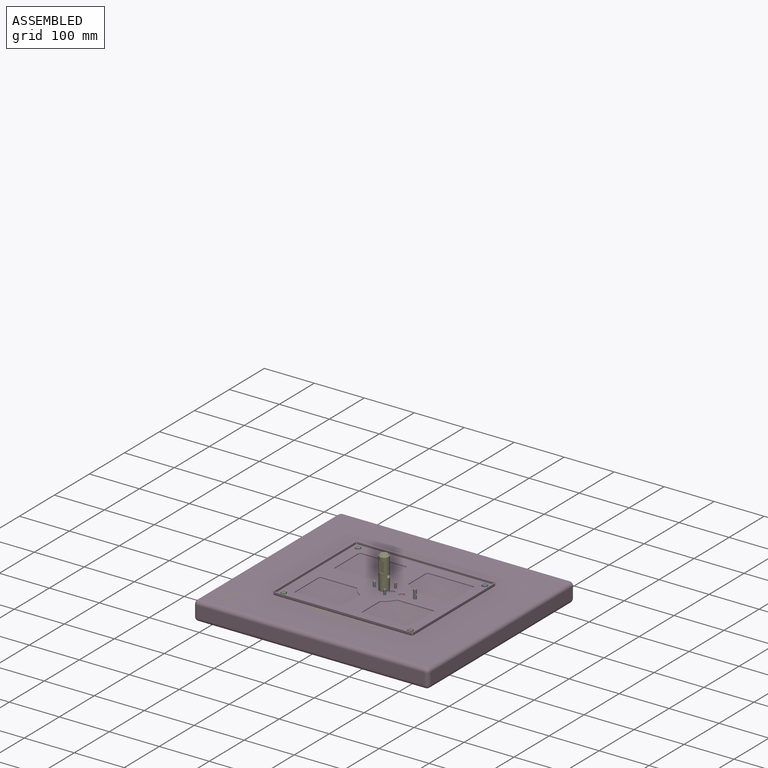
[diagram: assembled view]
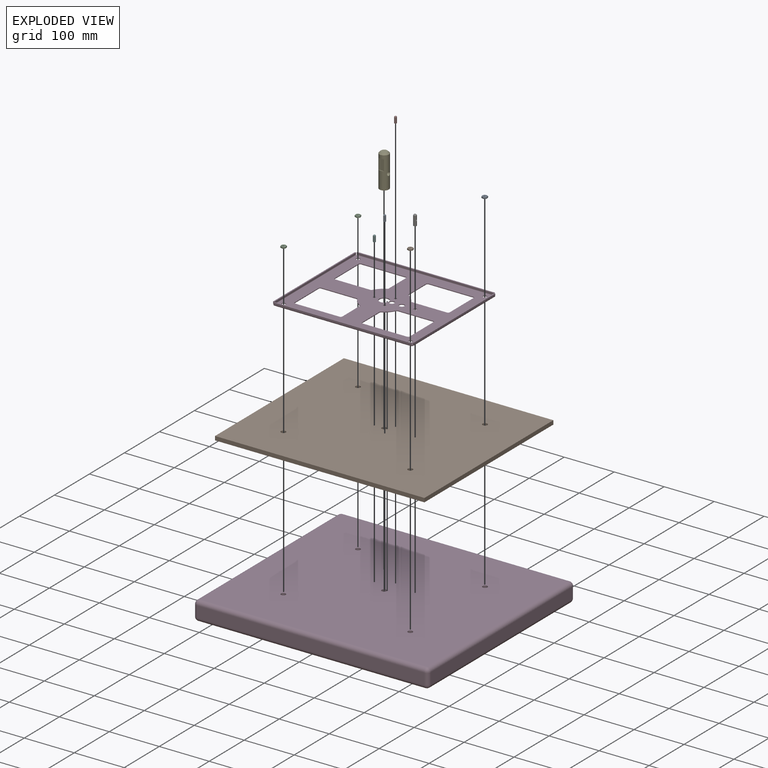
[diagram: exploded view]
GUIDED TOUR — MATED ASSEMBLY (Onshape document 5875152629a5ae1773e18e15, AutoMate assembly 5875152629a5ae1773e18e15_7c8e1c9a2186977687e85cd0_d532ed16156854fd230cbd94_default)

This assembly has 12 components, labeled P0..P11 below (a component is one placed occurrence of a part; the same part can appear more than once), held together by 11 mates. A mate is a constraint between two components; its type names the relative motion it leaves free:
  FASTENED — locks the two components together rigidly (no relative motion).
Axis/direction vectors are unit vectors and 'through' points are millimeter coordinates, both in the assembly's world frame.

MATES
  1. FASTENED "Fastened 7": P2 <-> P3, direction (0.000, 0.000, -1.000) through (-126.86, 106.23, 1.59) mm
  2. FASTENED "Fastened 1": P3 <-> P4, direction (0.000, 0.000, -1.000) through (0.00, 0.00, 0.00) mm
  3. FASTENED "Fastened 11": P11 <-> P4, direction (0.000, 0.000, 1.000) through (0.00, 0.00, 0.00) mm
  4. FASTENED "Fastened 5": P3 <-> P6, direction (0.000, 0.000, -1.000) through (61.91, 0.00, 0.00) mm
  5. FASTENED "Fastened 4": P3 <-> P0, direction (0.000, 0.000, -1.000) through (11.99, -15.56, 0.00) mm
  6. FASTENED "Fastened 2": P3 <-> P5, direction (0.000, 0.000, -1.000) through (-19.56, 0.00, 0.00) mm
  7. FASTENED "Fastened 8": P10 <-> P3, direction (0.000, 0.000, -1.000) through (-126.86, -106.23, 1.59) mm
  8. FASTENED "Fastened 10": P1 <-> P3, direction (0.000, 0.000, -1.000) through (126.86, -106.23, 1.59) mm
  9. FASTENED "Fastened 3": P3 <-> P7, direction (0.000, 0.000, -1.000) through (11.89, 15.59, 0.00) mm
  10. FASTENED "Fastened 6": P4 <-> P9, direction (0.000, 0.000, -1.000) through (0.00, 0.00, 0.00) mm
  11. FASTENED "Fastened 9": P8 <-> P3, direction (0.000, 0.000, -1.000) through (126.86, 106.23, 1.59) mm

ASSEMBLY ORDER
  1. P11 — the base component [order verified]
  2. P9 [order verified]
  3. P3 [order verified]
  4. P7 [order verified]
  5. P5 [order verified]
  6. P0 [order verified]
  7. P10 [order verified]
  8. P8 [order verified]
  9. P2 [order verified]
  10. P1 [order verified]
  11. P6 [order verified]
  12. P4 [order verified]
(P9 verified with a relaxed clearance tolerance: the source model stores slight part interference there.)
Order-tag legend:
  [order verified] — this step's position reverses a verified removal order: the component was checked to insert without passing through the ones already placed.

Of the 12 components, 3 carry the full construction recipe — the FeatureScript program that regenerates the part's solid from scratch; the rest are supplied as boundary geometry only.
Each toured component is shown spotlighted twice — in the assembled view, then in the exploded view, where a leader line traces a displaced component back to its assembled socket (saturated green if recipe-attached, orange if geometry-only; every other component desaturated gray) — followed by its recipe or geometry summary and the mates that hold it.
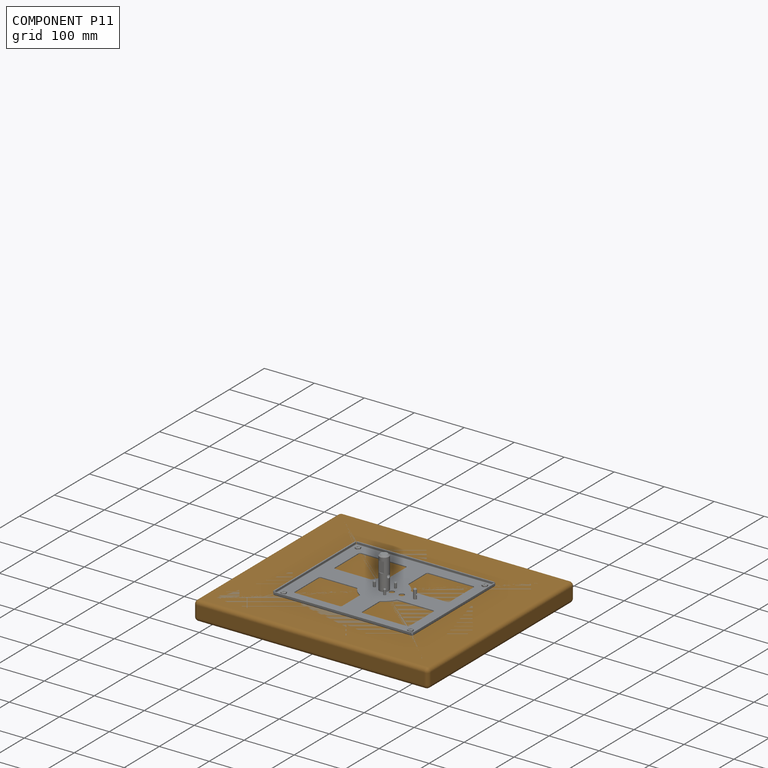
[diagram: component P11 — assembled]
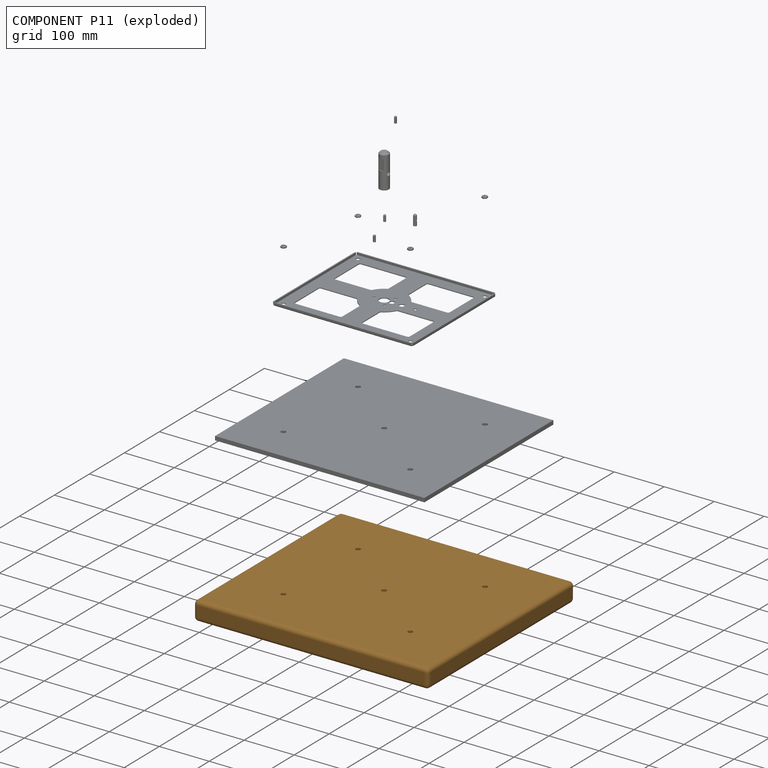
[diagram: component P11 — exploded]
COMPONENT P11 — geometry summary (no construction recipe available for this part):
  bounding box: 469.9 x 419.1 x 38.1 mm
  B-rep topology: 1 solid, 31 faces, 134 edges
  volume: 7444036 mm^3 (99% of its bounding box)
  symmetry: 2-fold rotationally symmetric about the x axis; 2-fold rotationally symmetric about the y axis; 2-fold rotationally symmetric about the z axis; mirror-symmetric across its x mid-plane, y mid-plane, z mid-plane
Held by: FASTENED mate "Fastened 11" to P4.
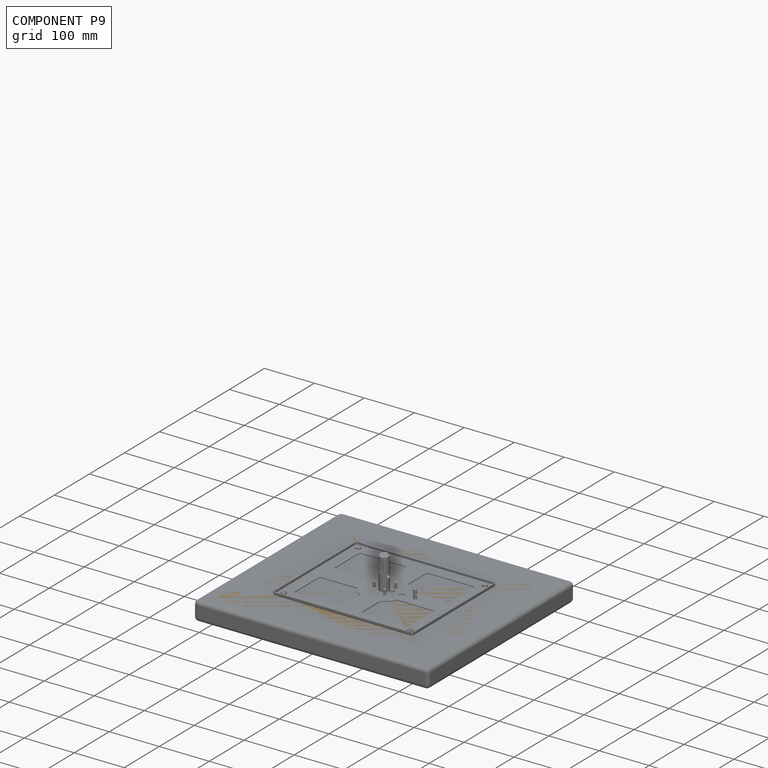
[diagram: component P9 — assembled]
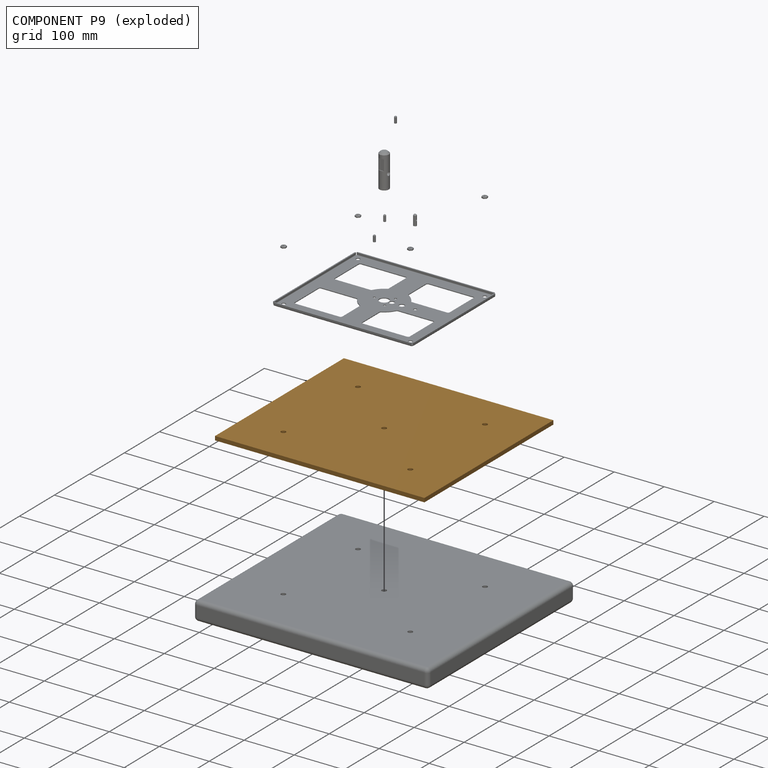
[diagram: component P9 — exploded]
COMPONENT P9 — geometry summary (no construction recipe available for this part):
  bounding box: 419.1 x 368.3 x 7.9 mm
  B-rep topology: 1 solid, 11 faces, 54 edges
  volume: 1222361 mm^3 (100% of its bounding box)
  symmetry: 2-fold rotationally symmetric about the x axis; 2-fold rotationally symmetric about the y axis; 2-fold rotationally symmetric about the z axis; mirror-symmetric across its x mid-plane, y mid-plane, z mid-plane
Held by: FASTENED mate "Fastened 6" to P4.
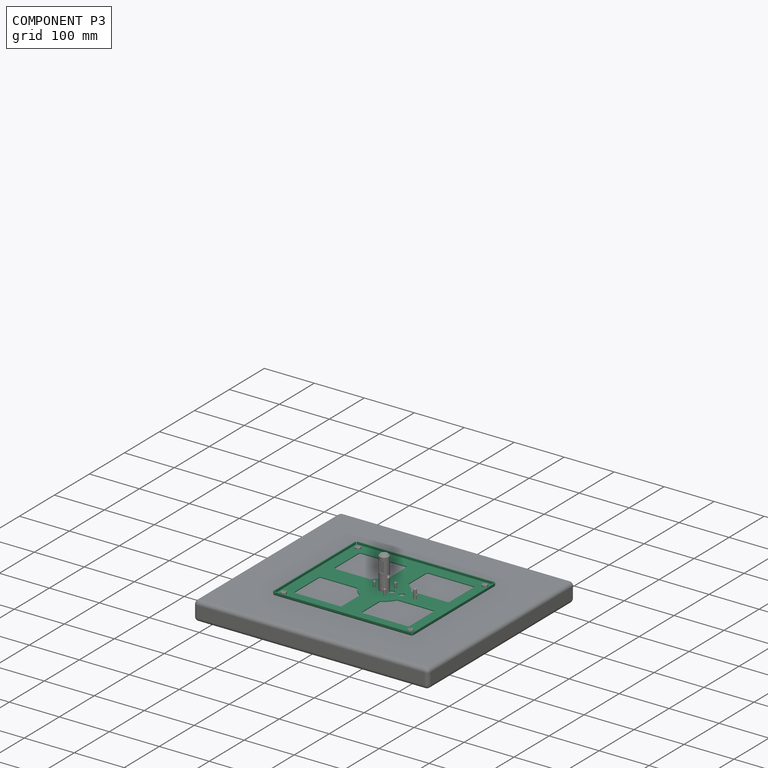
[diagram: component P3 — assembled]
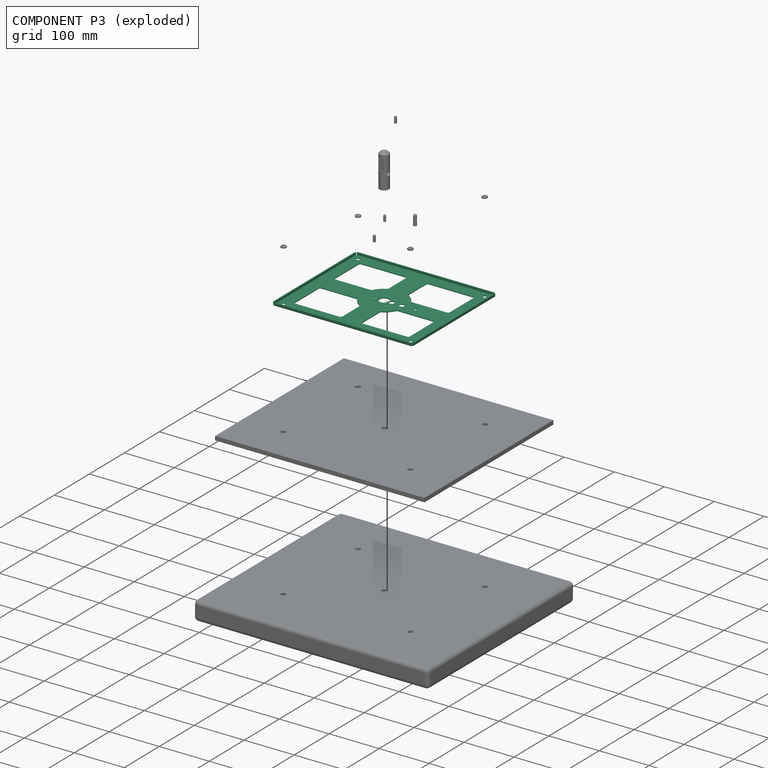
[diagram: component P3 — exploded]
COMPONENT P3 — recipe-attached (CADFS 00325569, mesh-verified: the recipe's output STEP matches this component's geometry to below the mesh-comparison resolution (tessellation chordal tolerance ~0.554 mm)).
Held by: FASTENED mate "Fastened 7" to P2; FASTENED mate "Fastened 1" to P4; FASTENED mate "Fastened 5" to P6; FASTENED mate "Fastened 4" to P0; FASTENED mate "Fastened 2" to P5; FASTENED mate "Fastened 8" to P10; FASTENED mate "Fastened 10" to P1; FASTENED mate "Fastened 3" to P7; FASTENED mate "Fastened 9" to P8.
Construction recipe (FeatureScript — the CAD program that rebuilds this solid; sketch coordinates are in the units given by the * unit suffixes, e.g. mm):

FeatureScript 1511;
import(path : "onshape/std/geometry.fs", version : "1511.0");
import(path : "onshape/std/common.fs", version : "1511.0");
const mm = millimeter;
const VERTEX = EntityType.VERTEX;
const EDGE = EntityType.EDGE;
const FACE = EntityType.FACE;
const BODY = EntityType.BODY;
function v(x, y){return vector(x, y);}
function OD(order){return orderDisambiguation(order);}
function OSD(set){return originalSetDisambiguation(set);}
function TD(topology){return topologyDisambiguation(topology);}
function TDD(query){return trueDependencyDisambiguation(query);}
function sQuery(a, b, c) {return sketchEntityQuery(a, b, c);}

annotation { "Feature Type Name" : "Feature", "Feature Type Description" : "" }
export const myFeature = defineFeature(function(context is Context, id is Id, definition is map)
    precondition{}
    {
        {
            var Q0;
            Q0=qCreatedBy(makeId("Top.planeOp"),FACE);
            var sketch = newSketch(context, id + "F0", { "sketchPlane" : qUnion([Q0])});
            skArc(sketch, "E0", {"start": v(-21.48, 38.92) * mm, "mid": v(-31.43, 31.43) * mm, "end": v(-38.92, 21.48) * mm});
            skLineSegment(sketch, "E1", {"start": v(-140.49, 116.69) * mm, "end": v(-140.49, -116.69) * mm});
            skLineSegment(sketch, "E2.0", {"start": v(-115.09, 91.29) * mm, "end": v(-115.09, 23.01) * mm});
            skLineSegment(sketch, "E3.0", {"start": v(-19.84, 91.29) * mm, "end": v(-19.84, 41.7) * mm});
            skLineSegment(sketch, "E4.0", {"start": v(19.84, 91.29) * mm, "end": v(19.84, 41.7) * mm});
            skLineSegment(sketch, "E5.0", {"start": v(115.09, 91.29) * mm, "end": v(115.09, 23.01) * mm});
            skLineSegment(sketch, "E6.0", {"start": v(140.49, 116.69) * mm, "end": v(140.49, -116.69) * mm});
            skLineSegment(sketch, "E7", {"start": v(-137.31, -119.86) * mm, "end": v(137.31, -119.86) * mm});
            skLineSegment(sketch, "E8.0", {"start": v(-111.91, -94.46) * mm, "end": v(-23.01, -94.46) * mm});
            skLineSegment(sketch, "E9.0", {"start": v(-111.91, -19.84) * mm, "end": v(-41.7, -19.84) * mm});
            skLineSegment(sketch, "E10.0", {"start": v(-111.91, 19.84) * mm, "end": v(-41.7, 19.84) * mm});
            skLineSegment(sketch, "E11.0", {"start": v(-111.91, 94.46) * mm, "end": v(-23.01, 94.46) * mm});
            skLineSegment(sketch, "E12.0", {"start": v(-137.31, 119.86) * mm, "end": v(137.31, 119.86) * mm});
            skLineSegment(sketch, "E13.trimOffspring", {"start": v(23.01, -94.46) * mm, "end": v(111.91, -94.46) * mm});
            skLineSegment(sketch, "E14.trimOffspring", {"start": v(-115.09, -23.01) * mm, "end": v(-115.09, -91.29) * mm});
            skLineSegment(sketch, "E15.trimOffspring", {"start": v(23.01, 94.46) * mm, "end": v(111.91, 94.46) * mm});
            skArc(sketch, "E16.trimOffspring", {"start": v(-38.92, -21.48) * mm, "mid": v(-31.43, -31.43) * mm, "end": v(-21.48, -38.92) * mm});
            skLineSegment(sketch, "E17.trimOffspring", {"start": v(41.7, 19.84) * mm, "end": v(111.91, 19.84) * mm});
            skArc(sketch, "E18.trimOffspring", {"start": v(38.92, 21.48) * mm, "mid": v(31.43, 31.43) * mm, "end": v(21.48, 38.92) * mm});
            skLineSegment(sketch, "E19.trimOffspring", {"start": v(41.7, -19.84) * mm, "end": v(111.91, -19.84) * mm});
            skLineSegment(sketch, "E20.trimOffspring", {"start": v(19.84, -41.7) * mm, "end": v(19.84, -91.29) * mm});
            skArc(sketch, "E21.trimOffspring", {"start": v(21.48, -38.92) * mm, "mid": v(31.43, -31.43) * mm, "end": v(38.92, -21.48) * mm});
            skLineSegment(sketch, "E22.trimOffspring", {"start": v(-19.84, -41.7) * mm, "end": v(-19.84, -91.29) * mm});
            skPoint(sketch, "E23.visualSharp", {"position": v(-115.09, 94.46) * mm});
            skArc(sketch, "E23.filletArc", {"start": v(-111.91, 94.46) * mm, "mid": v(-114.16, 93.53) * mm, "end": v(-115.09, 91.29) * mm});
            skPoint(sketch, "E24.visualSharp", {"position": v(-115.09, 19.84) * mm});
            skArc(sketch, "E24.filletArc", {"start": v(-115.09, 23.01) * mm, "mid": v(-114.16, 20.77) * mm, "end": v(-111.91, 19.84) * mm});
            skPoint(sketch, "E25.visualSharp", {"position": v(-39.78, 19.84) * mm});
            skArc(sketch, "E25.filletArc", {"start": v(-41.7, 19.84) * mm, "mid": v(-40.08, 20.28) * mm, "end": v(-38.92, 21.48) * mm});
            skPoint(sketch, "E26.visualSharp", {"position": v(-19.84, 39.78) * mm});
            skArc(sketch, "E26.filletArc", {"start": v(-21.48, 38.92) * mm, "mid": v(-20.28, 40.08) * mm, "end": v(-19.84, 41.7) * mm});
            skPoint(sketch, "E27.visualSharp", {"position": v(-19.84, 94.46) * mm});
            skArc(sketch, "E27.filletArc", {"start": v(-19.84, 91.29) * mm, "mid": v(-20.77, 93.53) * mm, "end": v(-23.01, 94.46) * mm});
            skPoint(sketch, "E28.visualSharp", {"position": v(19.84, 94.46) * mm});
            skArc(sketch, "E28.filletArc", {"start": v(23.01, 94.46) * mm, "mid": v(20.77, 93.53) * mm, "end": v(19.84, 91.29) * mm});
            skPoint(sketch, "E29.visualSharp", {"position": v(19.84, 39.78) * mm});
            skArc(sketch, "E29.filletArc", {"start": v(19.84, 41.7) * mm, "mid": v(20.28, 40.08) * mm, "end": v(21.48, 38.92) * mm});
            skPoint(sketch, "E30.visualSharp", {"position": v(39.78, 19.84) * mm});
            skArc(sketch, "E30.filletArc", {"start": v(38.92, 21.48) * mm, "mid": v(40.08, 20.28) * mm, "end": v(41.7, 19.84) * mm});
            skArc(sketch, "E31.filletArc", {"start": v(111.91, 19.84) * mm, "mid": v(114.16, 20.77) * mm, "end": v(115.09, 23.01) * mm});
            skPoint(sketch, "E32.visualSharp", {"position": v(115.09, 94.46) * mm});
            skArc(sketch, "E32.filletArc", {"start": v(115.09, 91.29) * mm, "mid": v(114.16, 93.53) * mm, "end": v(111.91, 94.46) * mm});
            skPoint(sketch, "E33.visualSharp", {"position": v(-39.78, -19.84) * mm});
            skArc(sketch, "E33.filletArc", {"start": v(-38.92, -21.48) * mm, "mid": v(-40.08, -20.28) * mm, "end": v(-41.7, -19.84) * mm});
            skPoint(sketch, "E34.visualSharp", {"position": v(-19.84, -39.78) * mm});
            skArc(sketch, "E34.filletArc", {"start": v(-19.84, -41.7) * mm, "mid": v(-20.28, -40.08) * mm, "end": v(-21.48, -38.92) * mm});
            skPoint(sketch, "E35.visualSharp", {"position": v(-19.84, -94.46) * mm});
            skArc(sketch, "E35.filletArc", {"start": v(-23.01, -94.46) * mm, "mid": v(-20.77, -93.53) * mm, "end": v(-19.84, -91.29) * mm});
            skPoint(sketch, "E36.visualSharp", {"position": v(-115.09, -94.46) * mm});
            skArc(sketch, "E36.filletArc", {"start": v(-115.09, -91.29) * mm, "mid": v(-114.16, -93.53) * mm, "end": v(-111.91, -94.46) * mm});
            skPoint(sketch, "E37.visualSharp", {"position": v(-115.09, -19.84) * mm});
            skArc(sketch, "E37.filletArc", {"start": v(-111.91, -19.84) * mm, "mid": v(-114.16, -20.77) * mm, "end": v(-115.09, -23.01) * mm});
            skPoint(sketch, "E38.visualSharp", {"position": v(19.84, -39.78) * mm});
            skArc(sketch, "E38.filletArc", {"start": v(21.48, -38.92) * mm, "mid": v(20.28, -40.08) * mm, "end": v(19.84, -41.7) * mm});
            skPoint(sketch, "E39.visualSharp", {"position": v(39.78, -19.84) * mm});
            skArc(sketch, "E39.filletArc", {"start": v(41.7, -19.84) * mm, "mid": v(40.08, -20.28) * mm, "end": v(38.92, -21.48) * mm});
            skPoint(sketch, "E40.visualSharp", {"position": v(19.84, -94.46) * mm});
            skArc(sketch, "E40.filletArc", {"start": v(19.84, -91.29) * mm, "mid": v(20.77, -93.53) * mm, "end": v(23.01, -94.46) * mm});
            skLineSegment(sketch, "E41", {"start": v(115.09, -91.29) * mm, "end": v(115.09, -23.01) * mm});
            skPoint(sketch, "E42.visualSharp", {"position": v(115.09, -94.46) * mm});
            skArc(sketch, "E42.filletArc", {"start": v(111.91, -94.46) * mm, "mid": v(114.16, -93.53) * mm, "end": v(115.09, -91.29) * mm});
            skPoint(sketch, "E43.visualSharp", {"position": v(115.09, -19.84) * mm});
            skArc(sketch, "E43.filletArc", {"start": v(115.09, -23.01) * mm, "mid": v(114.16, -20.77) * mm, "end": v(111.91, -19.84) * mm});
            skPoint(sketch, "E44.visualSharp", {"position": v(140.49, 119.86) * mm});
            skArc(sketch, "E44.filletArc", {"start": v(140.49, 116.69) * mm, "mid": v(139.56, 118.93) * mm, "end": v(137.31, 119.86) * mm});
            skPoint(sketch, "E45.visualSharp", {"position": v(140.49, -119.86) * mm});
            skArc(sketch, "E45.filletArc", {"start": v(137.31, -119.86) * mm, "mid": v(139.56, -118.93) * mm, "end": v(140.49, -116.69) * mm});
            skPoint(sketch, "E46.visualSharp", {"position": v(-140.49, -119.86) * mm});
            skArc(sketch, "E46.filletArc", {"start": v(-140.49, -116.69) * mm, "mid": v(-139.56, -118.93) * mm, "end": v(-137.31, -119.86) * mm});
            skPoint(sketch, "E47.visualSharp", {"position": v(-140.49, 119.86) * mm});
            skArc(sketch, "E47.filletArc", {"start": v(-137.31, 119.86) * mm, "mid": v(-139.56, 118.93) * mm, "end": v(-140.49, 116.69) * mm});
            skLineSegment(sketch, "E48", {"start": v(-139.56, -118.93) * mm, "end": v(-114.16, -93.53) * mm});
            skPoint(sketch, "E49", {"position": v(-126.86, -106.23) * mm});
            skCircle(sketch, "E50", {"center": v(-126.86, -106.23) * mm, "radius": 3.81 * mm});
            skLineSegment(sketch, "E51", {"start": v(-139.56, 118.93) * mm, "end": v(-114.16, 93.53) * mm});
            skPoint(sketch, "E52", {"position": v(-126.86, 106.23) * mm});
            skCircle(sketch, "E53", {"center": v(-126.86, 106.23) * mm, "radius": 3.81 * mm});
            skLineSegment(sketch, "E54", {"start": v(114.16, 93.53) * mm, "end": v(139.56, 118.93) * mm});
            skPoint(sketch, "E55", {"position": v(126.86, 106.23) * mm});
            skCircle(sketch, "E56", {"center": v(126.86, 106.23) * mm, "radius": 3.81 * mm});
            skLineSegment(sketch, "E57", {"start": v(114.16, -93.53) * mm, "end": v(139.56, -118.93) * mm});
            skPoint(sketch, "E58", {"position": v(126.86, -106.23) * mm});
            skCircle(sketch, "E59", {"center": v(126.86, -106.23) * mm, "radius": 3.81 * mm});
            skCircle(sketch, "E60", {"center": v(15.47, 0) * mm, "radius": 5.16 * mm});
            skLineSegment(sketch, "E61", {"start": v(0, 0) * mm, "end": v(-174.23, 0) * mm, "construction": true});
            skLineSegment(sketch, "E62", {"start": v(-174.23, 0) * mm, "end": v(-174.23, 0) * mm});
            skLineSegment(sketch, "E63", {"start": v(0, 0) * mm, "end": v(180.46, 0) * mm, "construction": true});
            skLineSegment(sketch, "E64", {"start": v(0, -149.74) * mm, "end": v(0, 151.2) * mm, "construction": true});
            skCircle(sketch, "E65", {"center": v(0, 0) * mm, "radius": 9.53 * mm});
            skCircle(sketch, "E66", {"center": v(35.31, 0) * mm, "radius": 5.16 * mm});
            skCircle(sketch, "E67", {"center": v(-19.56, 0) * mm, "radius": 2.38 * mm});
            skPoint(sketch, "E68", {"position": v(-31.43, 31.43) * mm});
            skPoint(sketch, "E69", {"position": v(-31.43, -31.43) * mm});
            skCircle(sketch, "E70", {"center": v(0, 0) * mm, "radius": 17.22 * mm});
            skCircle(sketch, "E71", {"center": v(11.9, 15.59) * mm, "radius": 2.39 * mm});
            skCircle(sketch, "E72", {"center": v(12, -15.56) * mm, "radius": 2.39 * mm});
            skLineSegment(sketch, "E73", {"start": v(9.53, 0) * mm, "end": v(9.53, 25.1) * mm, "construction": true});
            skLineSegment(sketch, "E74", {"start": v(9.53, 0) * mm, "end": v(9.53, -24.17) * mm, "construction": true});
            skCircle(sketch, "E75", {"center": v(61.91, 0) * mm, "radius": 3.18 * mm});
            skSolve(sketch);
        }
        {
            var Q0;
            Q0=makeQuery(id+"F0.imprint","IMPRINT",FACE,{"disambiguationData":[TD([[makeQuery(id+"F0.imprint","IMPRINT",EDGE,{"derivedFrom":sQuery(id+"F0.wireOp",EDGE,"E0")}),1.0]])]});
            var Q1;
            {var subQ14=sQuery(id+"F0.wireOp",EDGE,"E5.0");Q1=makeQuery(id+"F0.imprint","IMPRINT",FACE,{"disambiguationData":[TD([[makeQuery(id+"F0.imprint","IMPRINT",EDGE,{"derivedFrom":subQ14}),1.0]])]});}
            var Q2;
            Q2=makeQuery(id+"F0.imprint","IMPRINT",FACE,{"disambiguationData":[TD([[makeQuery(id+"F0.imprint","IMPRINT",EDGE,{"derivedFrom":sQuery(id+"F0.wireOp",EDGE,"E65")}),-1.0]])]});
            extrude(context, id + "F1", {"entities" : qUnion([Q0, Q1, Q2]), "depth" : 1.59 * mm});
        }
        {
            var Q0;
            Q0=qCreatedBy(makeId("Top.planeOp"),FACE);
            var sketch = newSketch(context, id + "F2", { "sketchPlane" : qUnion([Q0])});
            skLineSegment(sketch, "E76", {"start": v(-138.1, 116.68) * mm, "end": v(-138.1, -116.68) * mm});
            skLineSegment(sketch, "E77.0", {"start": v(-140.49, 116.68) * mm, "end": v(-140.49, -116.68) * mm});
            skLineSegment(sketch, "E78", {"start": v(138.1, 116.68) * mm, "end": v(138.1, -116.68) * mm});
            skLineSegment(sketch, "E79.0", {"start": v(140.49, 116.68) * mm, "end": v(140.49, -116.68) * mm});
            skLineSegment(sketch, "E80", {"start": v(-137.33, -117.48) * mm, "end": v(137.3, -117.48) * mm});
            skLineSegment(sketch, "E81.0", {"start": v(-137.33, 117.48) * mm, "end": v(137.3, 117.48) * mm});
            skLineSegment(sketch, "E82.0", {"start": v(-137.33, -119.86) * mm, "end": v(137.3, -119.86) * mm});
            skLineSegment(sketch, "E83", {"start": v(-137.33, 119.86) * mm, "end": v(-137.33, 117.48) * mm});
            skLineSegment(sketch, "E84", {"start": v(137.3, 119.86) * mm, "end": v(137.3, 117.48) * mm});
            skLineSegment(sketch, "E85", {"start": v(-140.49, 116.68) * mm, "end": v(-138.1, 116.68) * mm});
            skLineSegment(sketch, "E86", {"start": v(-140.49, -116.68) * mm, "end": v(-138.1, -116.68) * mm});
            skLineSegment(sketch, "E87.trimOffspring", {"start": v(-137.33, 119.86) * mm, "end": v(137.3, 119.86) * mm});
            skLineSegment(sketch, "E88.trimOffspring", {"start": v(137.3, -117.48) * mm, "end": v(137.3, -119.86) * mm});
            skLineSegment(sketch, "E89.trimOffspring", {"start": v(138.1, 116.68) * mm, "end": v(140.49, 116.68) * mm});
            skLineSegment(sketch, "E90.trimOffspring", {"start": v(-137.33, -117.48) * mm, "end": v(-137.33, -119.86) * mm});
            skLineSegment(sketch, "E91.trimOffspring", {"start": v(138.1, -116.68) * mm, "end": v(140.49, -116.68) * mm});
            skSolve(sketch);
        }
        {
            var Q0;
            Q0=makeQuery(id+"F2.imprint","IMPRINT",FACE,{"disambiguationData":[TD([[makeQuery(id+"F2.imprint","IMPRINT",EDGE,{"derivedFrom":sQuery(id+"F2.wireOp",EDGE,"E81.0")}),1.0]])]});
            var Q1;
            Q1=makeQuery(id+"F2.imprint","IMPRINT",FACE,{"disambiguationData":[TD([[makeQuery(id+"F2.imprint","IMPRINT",EDGE,{"derivedFrom":sQuery(id+"F2.wireOp",EDGE,"E78")}),1.0]])]});
            var Q2;
            Q2=makeQuery(id+"F2.imprint","IMPRINT",FACE,{"disambiguationData":[TD([[makeQuery(id+"F2.imprint","IMPRINT",EDGE,{"derivedFrom":sQuery(id+"F2.wireOp",EDGE,"E80")}),-1.0]])]});
            var Q3;
            Q3=makeQuery(id+"F2.imprint","IMPRINT",FACE,{"disambiguationData":[TD([[makeQuery(id+"F2.imprint","IMPRINT",EDGE,{"derivedFrom":sQuery(id+"F2.wireOp",EDGE,"E76")}),-1.0]])]});
            extrude(context, id + "F3", {"entities" : qUnion([Q0, Q1, Q2, Q3]), "operationType" : NewBodyOperationType.ADD, "depth" : 6.35 * mm});
        }
        {
            var Q0;
            Q0=makeQuery(id+"F3.boolean.opBoolean","INTERSECT",EDGE,{"derivedFrom":[makeQuery(id+"F1.opExtrude","CAP_FACE",FACE,{"disambiguationData":[OSD([sQuery(id+"F0.wireOp",EDGE,"E0"),sQuery(id+"F0.wireOp",EDGE,"E1"),sQuery(id+"F0.wireOp",EDGE,"E2.0"),sQuery(id+"F0.wireOp",EDGE,"E3.0"),sQuery(id+"F0.wireOp",EDGE,"E4.0"),sQuery(id+"F0.wireOp",EDGE,"E5.0"),sQuery(id+"F0.wireOp",EDGE,"E6.0"),sQuery(id+"F0.wireOp",EDGE,"E7"),sQuery(id+"F0.wireOp",EDGE,"E8.0"),sQuery(id+"F0.wireOp",EDGE,"E9.0"),sQuery(id+"F0.wireOp",EDGE,"E10.0"),sQuery(id+"F0.wireOp",EDGE,"E11.0"),sQuery(id+"F0.wireOp",EDGE,"E12.0"),sQuery(id+"F0.wireOp",EDGE,"E13.trimOffspring"),sQuery(id+"F0.wireOp",EDGE,"E14.trimOffspring"),sQuery(id+"F0.wireOp",EDGE,"E15.trimOffspring"),sQuery(id+"F0.wireOp",EDGE,"E16.trimOffspring"),sQuery(id+"F0.wireOp",EDGE,"E17.trimOffspring"),sQuery(id+"F0.wireOp",EDGE,"E18.trimOffspring"),sQuery(id+"F0.wireOp",EDGE,"E19.trimOffspring"),sQuery(id+"F0.wireOp",EDGE,"E20.trimOffspring"),sQuery(id+"F0.wireOp",EDGE,"E21.trimOffspring"),sQuery(id+"F0.wireOp",EDGE,"E22.trimOffspring"),sQuery(id+"F0.wireOp",EDGE,"E23.filletArc"),sQuery(id+"F0.wireOp",EDGE,"E24.filletArc"),sQuery(id+"F0.wireOp",EDGE,"E25.filletArc"),sQuery(id+"F0.wireOp",EDGE,"E26.filletArc"),sQuery(id+"F0.wireOp",EDGE,"E27.filletArc"),sQuery(id+"F0.wireOp",EDGE,"E28.filletArc"),sQuery(id+"F0.wireOp",EDGE,"E29.filletArc"),sQuery(id+"F0.wireOp",EDGE,"E30.filletArc"),sQuery(id+"F0.wireOp",EDGE,"E31.filletArc"),sQuery(id+"F0.wireOp",EDGE,"E32.filletArc"),sQuery(id+"F0.wireOp",EDGE,"E33.filletArc"),sQuery(id+"F0.wireOp",EDGE,"E34.filletArc"),sQuery(id+"F0.wireOp",EDGE,"E35.filletArc"),sQuery(id+"F0.wireOp",EDGE,"E36.filletArc"),sQuery(id+"F0.wireOp",EDGE,"E37.filletArc"),sQuery(id+"F0.wireOp",EDGE,"E38.filletArc"),sQuery(id+"F0.wireOp",EDGE,"E39.filletArc"),sQuery(id+"F0.wireOp",EDGE,"E40.filletArc"),sQuery(id+"F0.wireOp",EDGE,"E41"),sQuery(id+"F0.wireOp",EDGE,"E42.filletArc"),sQuery(id+"F0.wireOp",EDGE,"E43.filletArc"),sQuery(id+"F0.wireOp",EDGE,"E44.filletArc"),sQuery(id+"F0.wireOp",EDGE,"E45.filletArc"),sQuery(id+"F0.wireOp",EDGE,"E46.filletArc"),sQuery(id+"F0.wireOp",EDGE,"E47.filletArc"),sQuery(id+"F0.wireOp",EDGE,"E50"),sQuery(id+"F0.wireOp",EDGE,"E53"),sQuery(id+"F0.wireOp",EDGE,"E56"),sQuery(id+"F0.wireOp",EDGE,"E59"),sQuery(id+"F0.wireOp",EDGE,"E60"),sQuery(id+"F0.wireOp",EDGE,"4c565e8e-d8a4-4b50-a715-5eb734d49097")])],"isStart":false}),makeQuery(id+"F3.opExtrude","SWEPT_FACE",FACE,{"disambiguationData":[OSD([sQuery(id+"F2.wireOp",EDGE,"E81.0")])]})]});
            var Q1;
            Q1=makeQuery(id+"F3.boolean.opBoolean","INTERSECT",EDGE,{"derivedFrom":[makeQuery(id+"F1.opExtrude","CAP_FACE",FACE,{"disambiguationData":[OSD([sQuery(id+"F0.wireOp",EDGE,"E0"),sQuery(id+"F0.wireOp",EDGE,"E1"),sQuery(id+"F0.wireOp",EDGE,"E2.0"),sQuery(id+"F0.wireOp",EDGE,"E3.0"),sQuery(id+"F0.wireOp",EDGE,"E4.0"),sQuery(id+"F0.wireOp",EDGE,"E5.0"),sQuery(id+"F0.wireOp",EDGE,"E6.0"),sQuery(id+"F0.wireOp",EDGE,"E7"),sQuery(id+"F0.wireOp",EDGE,"E8.0"),sQuery(id+"F0.wireOp",EDGE,"E9.0"),sQuery(id+"F0.wireOp",EDGE,"E10.0"),sQuery(id+"F0.wireOp",EDGE,"E11.0"),sQuery(id+"F0.wireOp",EDGE,"E12.0"),sQuery(id+"F0.wireOp",EDGE,"E13.trimOffspring"),sQuery(id+"F0.wireOp",EDGE,"E14.trimOffspring"),sQuery(id+"F0.wireOp",EDGE,"E15.trimOffspring"),sQuery(id+"F0.wireOp",EDGE,"E16.trimOffspring"),sQuery(id+"F0.wireOp",EDGE,"E17.trimOffspring"),sQuery(id+"F0.wireOp",EDGE,"E18.trimOffspring"),sQuery(id+"F0.wireOp",EDGE,"E19.trimOffspring"),sQuery(id+"F0.wireOp",EDGE,"E20.trimOffspring"),sQuery(id+"F0.wireOp",EDGE,"E21.trimOffspring"),sQuery(id+"F0.wireOp",EDGE,"E22.trimOffspring"),sQuery(id+"F0.wireOp",EDGE,"E23.filletArc"),sQuery(id+"F0.wireOp",EDGE,"E24.filletArc"),sQuery(id+"F0.wireOp",EDGE,"E25.filletArc"),sQuery(id+"F0.wireOp",EDGE,"E26.filletArc"),sQuery(id+"F0.wireOp",EDGE,"E27.filletArc"),sQuery(id+"F0.wireOp",EDGE,"E28.filletArc"),sQuery(id+"F0.wireOp",EDGE,"E29.filletArc"),sQuery(id+"F0.wireOp",EDGE,"E30.filletArc"),sQuery(id+"F0.wireOp",EDGE,"E31.filletArc"),sQuery(id+"F0.wireOp",EDGE,"E32.filletArc"),sQuery(id+"F0.wireOp",EDGE,"E33.filletArc"),sQuery(id+"F0.wireOp",EDGE,"E34.filletArc"),sQuery(id+"F0.wireOp",EDGE,"E35.filletArc"),sQuery(id+"F0.wireOp",EDGE,"E36.filletArc"),sQuery(id+"F0.wireOp",EDGE,"E37.filletArc"),sQuery(id+"F0.wireOp",EDGE,"E38.filletArc"),sQuery(id+"F0.wireOp",EDGE,"E39.filletArc"),sQuery(id+"F0.wireOp",EDGE,"E40.filletArc"),sQuery(id+"F0.wireOp",EDGE,"E41"),sQuery(id+"F0.wireOp",EDGE,"E42.filletArc"),sQuery(id+"F0.wireOp",EDGE,"E43.filletArc"),sQuery(id+"F0.wireOp",EDGE,"E44.filletArc"),sQuery(id+"F0.wireOp",EDGE,"E45.filletArc"),sQuery(id+"F0.wireOp",EDGE,"E46.filletArc"),sQuery(id+"F0.wireOp",EDGE,"E47.filletArc"),sQuery(id+"F0.wireOp",EDGE,"E50"),sQuery(id+"F0.wireOp",EDGE,"E53"),sQuery(id+"F0.wireOp",EDGE,"E56"),sQuery(id+"F0.wireOp",EDGE,"E59"),sQuery(id+"F0.wireOp",EDGE,"E60"),sQuery(id+"F0.wireOp",EDGE,"4c565e8e-d8a4-4b50-a715-5eb734d49097")])],"isStart":false}),makeQuery(id+"F3.opExtrude","SWEPT_FACE",FACE,{"disambiguationData":[OSD([sQuery(id+"F2.wireOp",EDGE,"E78")])]})]});
            var Q2;
            Q2=makeQuery(id+"F3.boolean.opBoolean","INTERSECT",EDGE,{"derivedFrom":[makeQuery(id+"F1.opExtrude","CAP_FACE",FACE,{"disambiguationData":[OSD([sQuery(id+"F0.wireOp",EDGE,"E0"),sQuery(id+"F0.wireOp",EDGE,"E1"),sQuery(id+"F0.wireOp",EDGE,"E2.0"),sQuery(id+"F0.wireOp",EDGE,"E3.0"),sQuery(id+"F0.wireOp",EDGE,"E4.0"),sQuery(id+"F0.wireOp",EDGE,"E5.0"),sQuery(id+"F0.wireOp",EDGE,"E6.0"),sQuery(id+"F0.wireOp",EDGE,"E7"),sQuery(id+"F0.wireOp",EDGE,"E8.0"),sQuery(id+"F0.wireOp",EDGE,"E9.0"),sQuery(id+"F0.wireOp",EDGE,"E10.0"),sQuery(id+"F0.wireOp",EDGE,"E11.0"),sQuery(id+"F0.wireOp",EDGE,"E12.0"),sQuery(id+"F0.wireOp",EDGE,"E13.trimOffspring"),sQuery(id+"F0.wireOp",EDGE,"E14.trimOffspring"),sQuery(id+"F0.wireOp",EDGE,"E15.trimOffspring"),sQuery(id+"F0.wireOp",EDGE,"E16.trimOffspring"),sQuery(id+"F0.wireOp",EDGE,"E17.trimOffspring"),sQuery(id+"F0.wireOp",EDGE,"E18.trimOffspring"),sQuery(id+"F0.wireOp",EDGE,"E19.trimOffspring"),sQuery(id+"F0.wireOp",EDGE,"E20.trimOffspring"),sQuery(id+"F0.wireOp",EDGE,"E21.trimOffspring"),sQuery(id+"F0.wireOp",EDGE,"E22.trimOffspring"),sQuery(id+"F0.wireOp",EDGE,"E23.filletArc"),sQuery(id+"F0.wireOp",EDGE,"E24.filletArc"),sQuery(id+"F0.wireOp",EDGE,"E25.filletArc"),sQuery(id+"F0.wireOp",EDGE,"E26.filletArc"),sQuery(id+"F0.wireOp",EDGE,"E27.filletArc"),sQuery(id+"F0.wireOp",EDGE,"E28.filletArc"),sQuery(id+"F0.wireOp",EDGE,"E29.filletArc"),sQuery(id+"F0.wireOp",EDGE,"E30.filletArc"),sQuery(id+"F0.wireOp",EDGE,"E31.filletArc"),sQuery(id+"F0.wireOp",EDGE,"E32.filletArc"),sQuery(id+"F0.wireOp",EDGE,"E33.filletArc"),sQuery(id+"F0.wireOp",EDGE,"E34.filletArc"),sQuery(id+"F0.wireOp",EDGE,"E35.filletArc"),sQuery(id+"F0.wireOp",EDGE,"E36.filletArc"),sQuery(id+"F0.wireOp",EDGE,"E37.filletArc"),sQuery(id+"F0.wireOp",EDGE,"E38.filletArc"),sQuery(id+"F0.wireOp",EDGE,"E39.filletArc"),sQuery(id+"F0.wireOp",EDGE,"E40.filletArc"),sQuery(id+"F0.wireOp",EDGE,"E41"),sQuery(id+"F0.wireOp",EDGE,"E42.filletArc"),sQuery(id+"F0.wireOp",EDGE,"E43.filletArc"),sQuery(id+"F0.wireOp",EDGE,"E44.filletArc"),sQuery(id+"F0.wireOp",EDGE,"E45.filletArc"),sQuery(id+"F0.wireOp",EDGE,"E46.filletArc"),sQuery(id+"F0.wireOp",EDGE,"E47.filletArc"),sQuery(id+"F0.wireOp",EDGE,"E50"),sQuery(id+"F0.wireOp",EDGE,"E53"),sQuery(id+"F0.wireOp",EDGE,"E56"),sQuery(id+"F0.wireOp",EDGE,"E59"),sQuery(id+"F0.wireOp",EDGE,"E60"),sQuery(id+"F0.wireOp",EDGE,"4c565e8e-d8a4-4b50-a715-5eb734d49097")])],"isStart":false}),makeQuery(id+"F3.opExtrude","SWEPT_FACE",FACE,{"disambiguationData":[OSD([sQuery(id+"F2.wireOp",EDGE,"E80")])]})]});
            var Q3;
            Q3=makeQuery(id+"F3.boolean.opBoolean","INTERSECT",EDGE,{"derivedFrom":[makeQuery(id+"F1.opExtrude","CAP_FACE",FACE,{"disambiguationData":[OSD([sQuery(id+"F0.wireOp",EDGE,"E0"),sQuery(id+"F0.wireOp",EDGE,"E1"),sQuery(id+"F0.wireOp",EDGE,"E2.0"),sQuery(id+"F0.wireOp",EDGE,"E3.0"),sQuery(id+"F0.wireOp",EDGE,"E4.0"),sQuery(id+"F0.wireOp",EDGE,"E5.0"),sQuery(id+"F0.wireOp",EDGE,"E6.0"),sQuery(id+"F0.wireOp",EDGE,"E7"),sQuery(id+"F0.wireOp",EDGE,"E8.0"),sQuery(id+"F0.wireOp",EDGE,"E9.0"),sQuery(id+"F0.wireOp",EDGE,"E10.0"),sQuery(id+"F0.wireOp",EDGE,"E11.0"),sQuery(id+"F0.wireOp",EDGE,"E12.0"),sQuery(id+"F0.wireOp",EDGE,"E13.trimOffspring"),sQuery(id+"F0.wireOp",EDGE,"E14.trimOffspring"),sQuery(id+"F0.wireOp",EDGE,"E15.trimOffspring"),sQuery(id+"F0.wireOp",EDGE,"E16.trimOffspring"),sQuery(id+"F0.wireOp",EDGE,"E17.trimOffspring"),sQuery(id+"F0.wireOp",EDGE,"E18.trimOffspring"),sQuery(id+"F0.wireOp",EDGE,"E19.trimOffspring"),sQuery(id+"F0.wireOp",EDGE,"E20.trimOffspring"),sQuery(id+"F0.wireOp",EDGE,"E21.trimOffspring"),sQuery(id+"F0.wireOp",EDGE,"E22.trimOffspring"),sQuery(id+"F0.wireOp",EDGE,"E23.filletArc"),sQuery(id+"F0.wireOp",EDGE,"E24.filletArc"),sQuery(id+"F0.wireOp",EDGE,"E25.filletArc"),sQuery(id+"F0.wireOp",EDGE,"E26.filletArc"),sQuery(id+"F0.wireOp",EDGE,"E27.filletArc"),sQuery(id+"F0.wireOp",EDGE,"E28.filletArc"),sQuery(id+"F0.wireOp",EDGE,"E29.filletArc"),sQuery(id+"F0.wireOp",EDGE,"E30.filletArc"),sQuery(id+"F0.wireOp",EDGE,"E31.filletArc"),sQuery(id+"F0.wireOp",EDGE,"E32.filletArc"),sQuery(id+"F0.wireOp",EDGE,"E33.filletArc"),sQuery(id+"F0.wireOp",EDGE,"E34.filletArc"),sQuery(id+"F0.wireOp",EDGE,"E35.filletArc"),sQuery(id+"F0.wireOp",EDGE,"E36.filletArc"),sQuery(id+"F0.wireOp",EDGE,"E37.filletArc"),sQuery(id+"F0.wireOp",EDGE,"E38.filletArc"),sQuery(id+"F0.wireOp",EDGE,"E39.filletArc"),sQuery(id+"F0.wireOp",EDGE,"E40.filletArc"),sQuery(id+"F0.wireOp",EDGE,"E41"),sQuery(id+"F0.wireOp",EDGE,"E42.filletArc"),sQuery(id+"F0.wireOp",EDGE,"E43.filletArc"),sQuery(id+"F0.wireOp",EDGE,"E44.filletArc"),sQuery(id+"F0.wireOp",EDGE,"E45.filletArc"),sQuery(id+"F0.wireOp",EDGE,"E46.filletArc"),sQuery(id+"F0.wireOp",EDGE,"E47.filletArc"),sQuery(id+"F0.wireOp",EDGE,"E50"),sQuery(id+"F0.wireOp",EDGE,"E53"),sQuery(id+"F0.wireOp",EDGE,"E56"),sQuery(id+"F0.wireOp",EDGE,"E59"),sQuery(id+"F0.wireOp",EDGE,"E60"),sQuery(id+"F0.wireOp",EDGE,"4c565e8e-d8a4-4b50-a715-5eb734d49097")])],"isStart":false}),makeQuery(id+"F3.opExtrude","SWEPT_FACE",FACE,{"disambiguationData":[OSD([sQuery(id+"F2.wireOp",EDGE,"E76")])]})]});
            fillet(context, id + "F4", {"entities" : qUnion([Q0, Q1, Q2, Q3]), "radius" : 0.76 * mm, "tangentPropagation" : true, "allowEdgeOverflow" : false});
        }
        {
            var Q0;
            Q0=qCreatedBy(makeId("Top.planeOp"),FACE);
            var sketch = newSketch(context, id + "F5", { "sketchPlane" : qUnion([Q0])});
            skLineSegment(sketch, "E92.bottom", {"start": v(-141.66, 120.91) * mm, "end": v(-137.32, 120.91) * mm});
            skLineSegment(sketch, "E92.top", {"start": v(-141.66, 116.68) * mm, "end": v(-137.32, 116.68) * mm});
            skLineSegment(sketch, "E92.left", {"start": v(-141.66, 120.91) * mm, "end": v(-141.66, 116.68) * mm});
            skLineSegment(sketch, "E92.right", {"start": v(-137.32, 120.91) * mm, "end": v(-137.32, 116.68) * mm});
            skLineSegment(sketch, "E93.bottom", {"start": v(145, 124.29) * mm, "end": v(137.31, 124.29) * mm});
            skLineSegment(sketch, "E93.top", {"start": v(145, 116.68) * mm, "end": v(137.31, 116.68) * mm});
            skLineSegment(sketch, "E93.left", {"start": v(145, 124.29) * mm, "end": v(145, 116.68) * mm});
            skLineSegment(sketch, "E93.right", {"start": v(137.31, 124.29) * mm, "end": v(137.31, 116.68) * mm});
            skLineSegment(sketch, "E94.bottom", {"start": v(145, -123.46) * mm, "end": v(137.31, -123.46) * mm});
            skLineSegment(sketch, "E94.top", {"start": v(145, -116.68) * mm, "end": v(137.31, -116.68) * mm});
            skLineSegment(sketch, "E94.left", {"start": v(145, -123.46) * mm, "end": v(145, -116.68) * mm});
            skLineSegment(sketch, "E94.right", {"start": v(137.31, -123.46) * mm, "end": v(137.31, -116.68) * mm});
            skLineSegment(sketch, "E95.bottom", {"start": v(-145.82, -123.08) * mm, "end": v(-137.33, -123.08) * mm});
            skLineSegment(sketch, "E95.top", {"start": v(-145.82, -116.68) * mm, "end": v(-137.33, -116.68) * mm});
            skLineSegment(sketch, "E95.left", {"start": v(-145.82, -123.08) * mm, "end": v(-145.82, -116.68) * mm});
            skLineSegment(sketch, "E95.right", {"start": v(-137.33, -123.08) * mm, "end": v(-137.33, -116.68) * mm});
            skSolve(sketch);
        }
        {
            var Q0;
            Q0=makeQuery(id+"F5.imprint","IMPRINT",FACE,{"disambiguationData":[TD([[makeQuery(id+"F5.imprint","IMPRINT",EDGE,{"derivedFrom":sQuery(id+"F5.wireOp",EDGE,"E93.bottom")}),1.0]])]});
            var Q1;
            Q1=makeQuery(id+"F5.imprint","IMPRINT",FACE,{"disambiguationData":[TD([[makeQuery(id+"F5.imprint","IMPRINT",EDGE,{"derivedFrom":sQuery(id+"F5.wireOp",EDGE,"E92.bottom")}),-1.0]])]});
            var Q2;
            Q2=makeQuery(id+"F5.imprint","IMPRINT",FACE,{"disambiguationData":[TD([[makeQuery(id+"F5.imprint","IMPRINT",EDGE,{"derivedFrom":sQuery(id+"F5.wireOp",EDGE,"E95.bottom")}),1.0]])]});
            var Q3;
            Q3=makeQuery(id+"F5.imprint","IMPRINT",FACE,{"disambiguationData":[TD([[makeQuery(id+"F5.imprint","IMPRINT",EDGE,{"derivedFrom":sQuery(id+"F5.wireOp",EDGE,"E94.bottom")}),-1.0]])]});
            extrude(context, id + "F6", {"entities" : qUnion([Q0, Q1, Q2, Q3]), "operationType" : NewBodyOperationType.REMOVE, "endBound" : BoundingType.SYMMETRIC, "depth" : 25.4 * mm});
        }
        {
            var Q0;
            Q0=makeQuery(id+"F1.opExtrude","CAP_EDGE",EDGE,{"disambiguationData":[OSD([sQuery(id+"F0.wireOp",EDGE,"E12.0")])],"isStart":true});
            var Q1;
            Q1=makeQuery(id+"F1.opExtrude","CAP_EDGE",EDGE,{"disambiguationData":[OSD([sQuery(id+"F0.wireOp",EDGE,"E1")])],"isStart":true});
            var Q2;
            Q2=makeQuery(id+"F1.opExtrude","CAP_EDGE",EDGE,{"disambiguationData":[OSD([sQuery(id+"F0.wireOp",EDGE,"E6.0")])],"isStart":true});
            var Q3;
            Q3=makeQuery(id+"F1.opExtrude","CAP_EDGE",EDGE,{"disambiguationData":[OSD([sQuery(id+"F0.wireOp",EDGE,"E7")])],"isStart":true});
            fillet(context, id + "F7", {"entities" : qUnion([Q0, Q1, Q2, Q3]), "radius" : 2.8 * mm, "tangentPropagation" : true, "allowEdgeOverflow" : false});
        }
    });
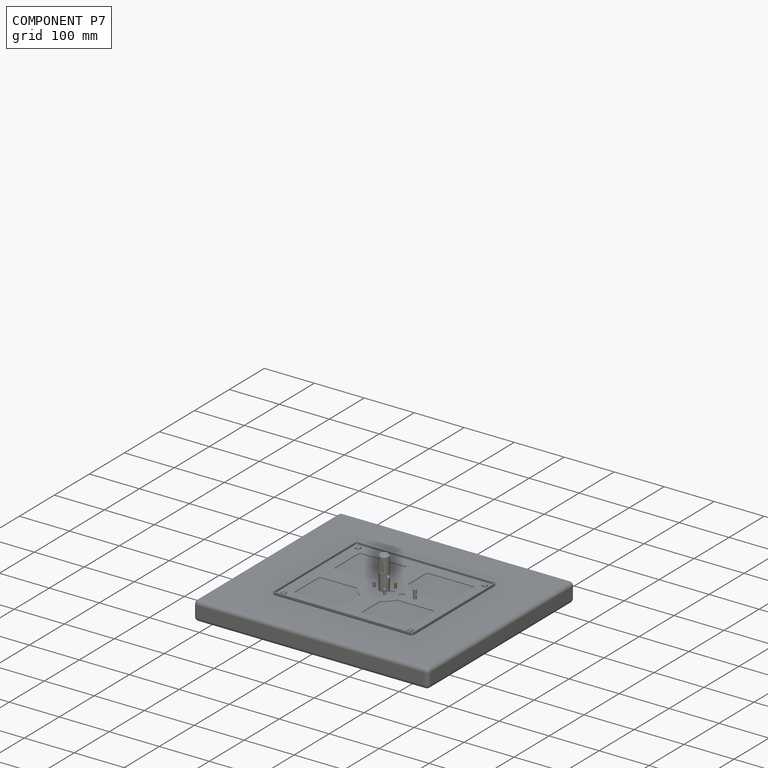
[diagram: component P7 — assembled]
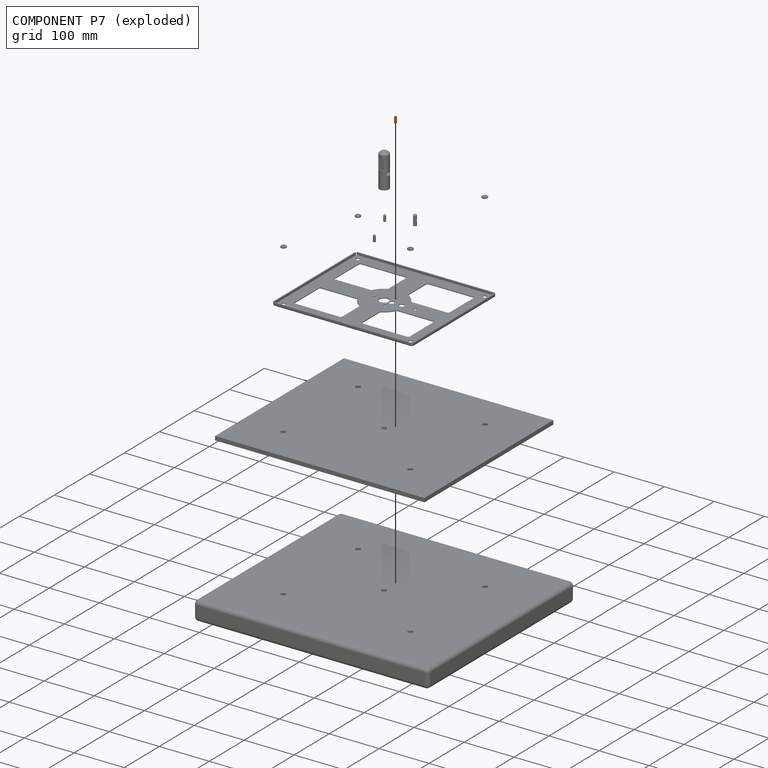
[diagram: component P7 — exploded]
COMPONENT P7 — geometry summary (no construction recipe available for this part):
  bounding box: 12.7 x 4.8 x 4.8 mm
  B-rep topology: 1 solid, 4 faces, 10 edges
  volume: 217 mm^3 (75% of its bounding box)
  symmetry: revolution-symmetric about the z axis through its bounding-box center; mirror-symmetric across its x mid-plane, y mid-plane
Held by: FASTENED mate "Fastened 3" to P3.
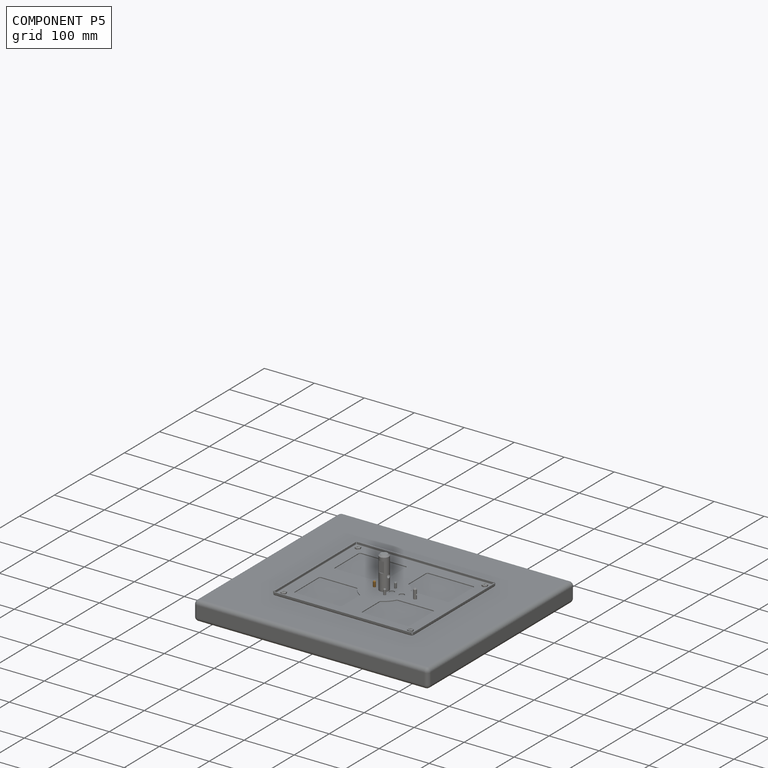
[diagram: component P5 — assembled]
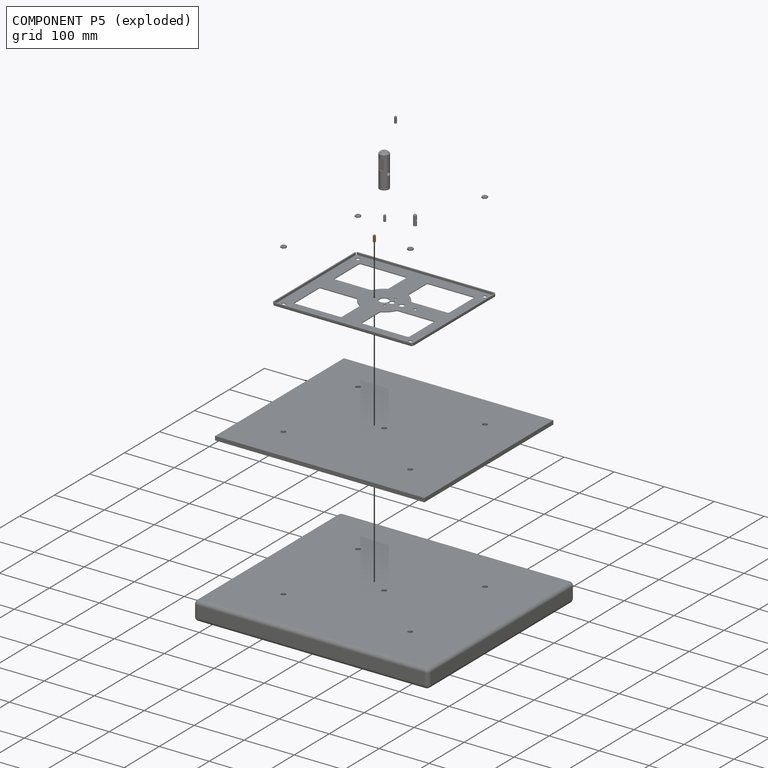
[diagram: component P5 — exploded]
COMPONENT P5 — geometry summary (no construction recipe available for this part):
  bounding box: 12.7 x 4.8 x 4.8 mm
  B-rep topology: 1 solid, 4 faces, 10 edges
  volume: 217 mm^3 (75% of its bounding box)
  symmetry: revolution-symmetric about the z axis through its bounding-box center; mirror-symmetric across its x mid-plane, y mid-plane
Held by: FASTENED mate "Fastened 2" to P3.
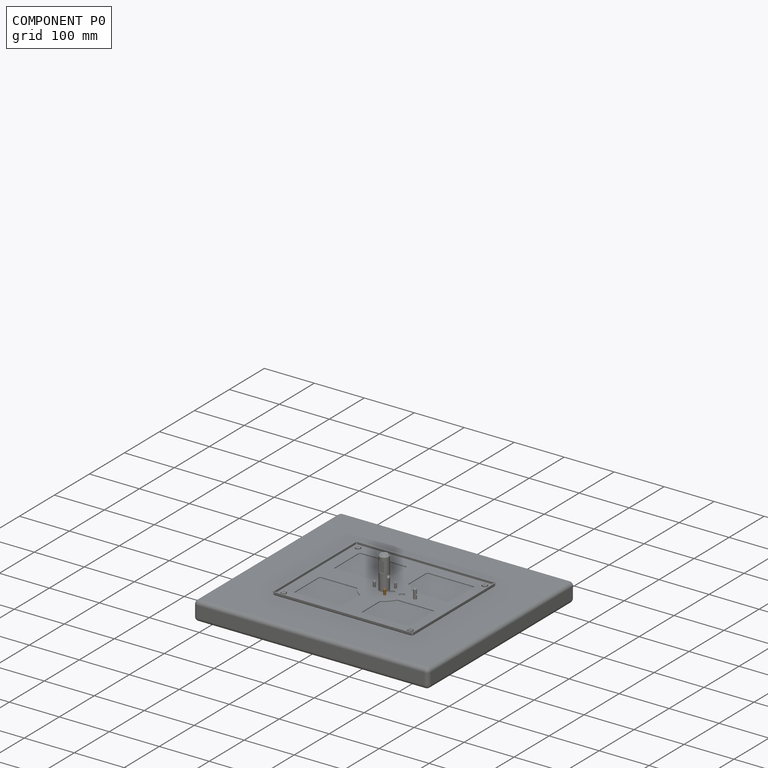
[diagram: component P0 — assembled]
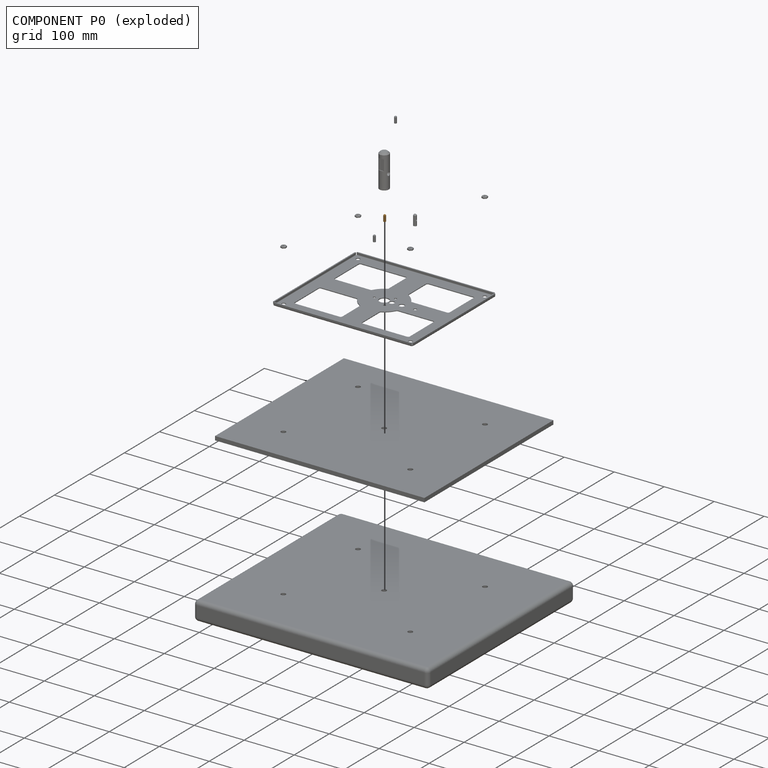
[diagram: component P0 — exploded]
COMPONENT P0 — geometry summary (no construction recipe available for this part):
  bounding box: 12.7 x 4.8 x 4.8 mm
  B-rep topology: 1 solid, 4 faces, 10 edges
  volume: 217 mm^3 (75% of its bounding box)
  symmetry: revolution-symmetric about the z axis through its bounding-box center; mirror-symmetric across its x mid-plane, y mid-plane
Held by: FASTENED mate "Fastened 4" to P3.
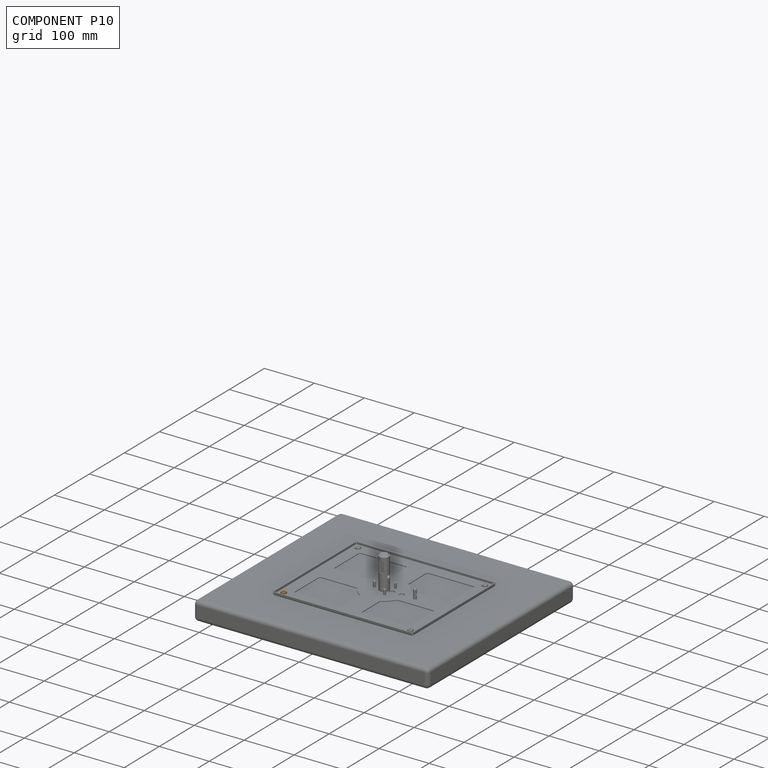
[diagram: component P10 — assembled]
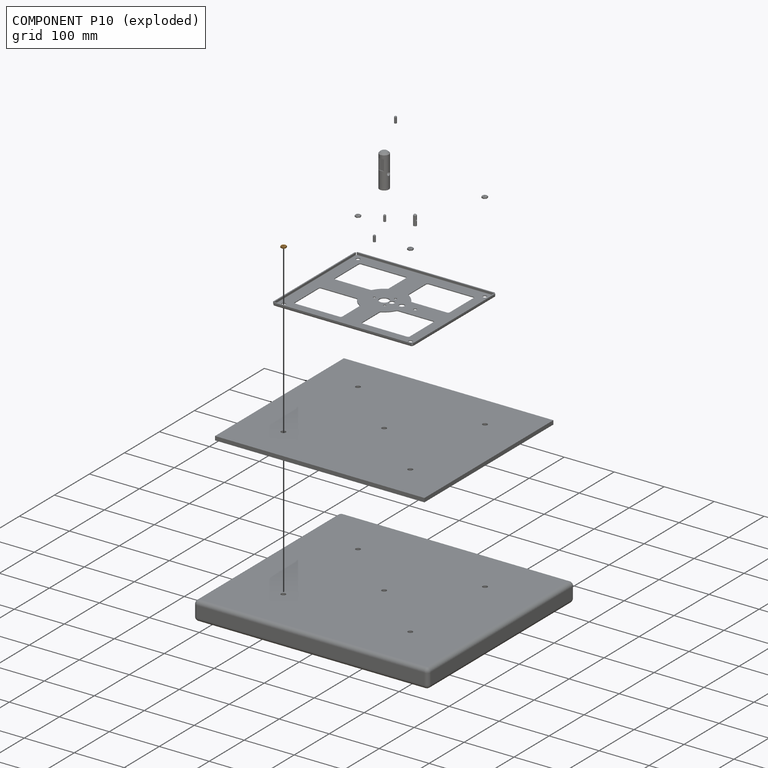
[diagram: component P10 — exploded]
COMPONENT P10 — geometry summary (no construction recipe available for this part):
  bounding box: 11.0 x 10.8 x 3.4 mm
  B-rep topology: 1 solid, 27 faces, 128 edges
  volume: 226 mm^3 (56% of its bounding box)
  symmetry: 2-fold rotationally symmetric about the z axis
Held by: FASTENED mate "Fastened 8" to P3.
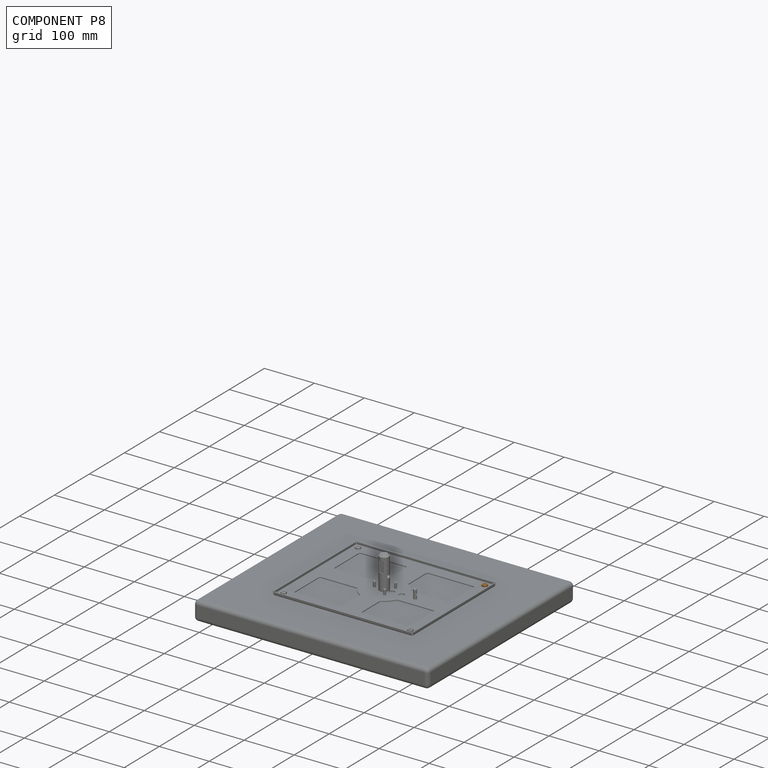
[diagram: component P8 — assembled]
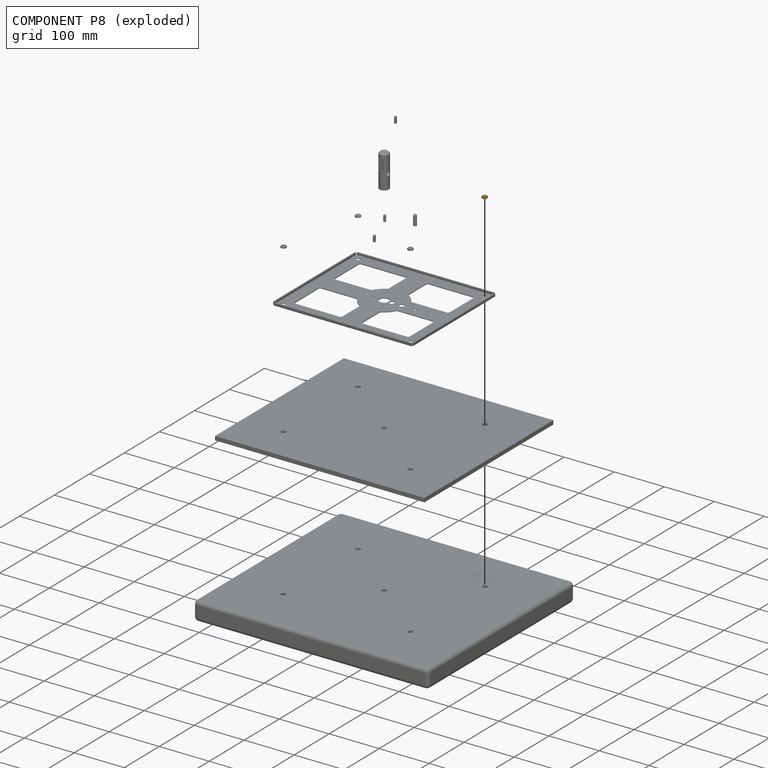
[diagram: component P8 — exploded]
COMPONENT P8 — geometry summary (no construction recipe available for this part):
  bounding box: 11.0 x 10.8 x 3.4 mm
  B-rep topology: 1 solid, 27 faces, 128 edges
  volume: 226 mm^3 (56% of its bounding box)
  symmetry: 2-fold rotationally symmetric about the z axis
Held by: FASTENED mate "Fastened 9" to P3.
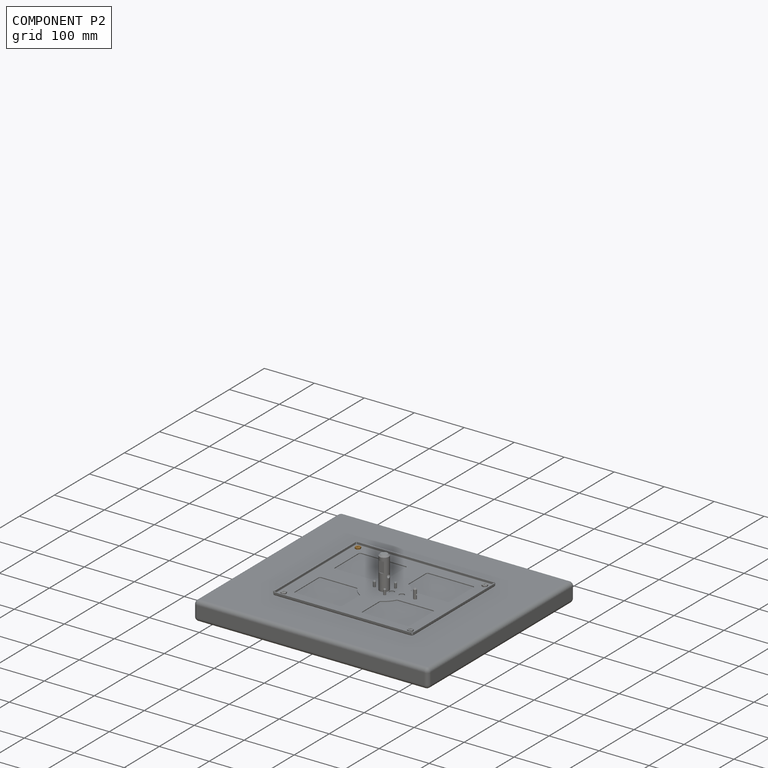
[diagram: component P2 — assembled]
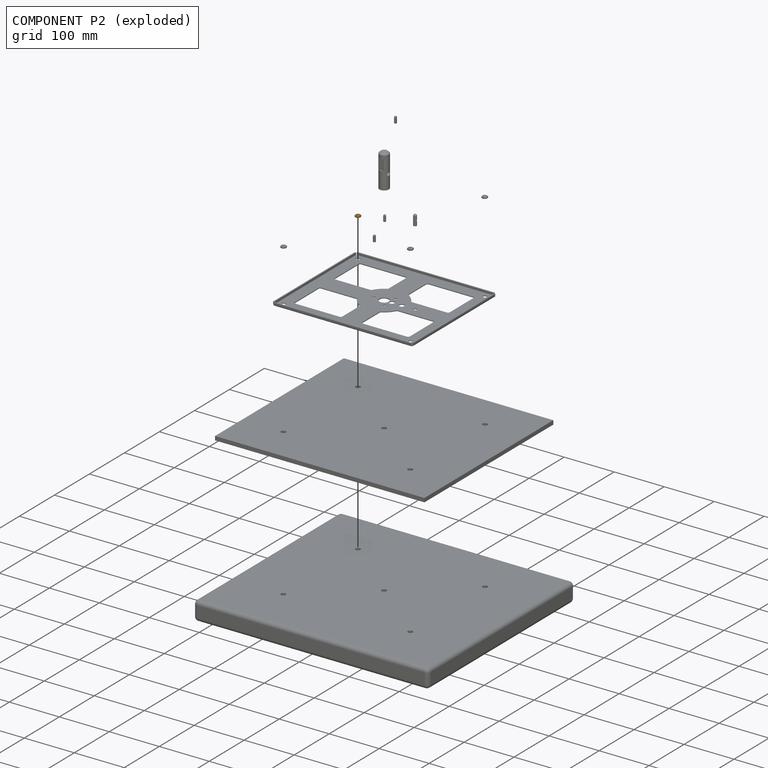
[diagram: component P2 — exploded]
COMPONENT P2 — geometry summary (no construction recipe available for this part):
  bounding box: 11.0 x 10.8 x 3.4 mm
  B-rep topology: 1 solid, 27 faces, 128 edges
  volume: 226 mm^3 (56% of its bounding box)
  symmetry: 2-fold rotationally symmetric about the z axis
Held by: FASTENED mate "Fastened 7" to P3.
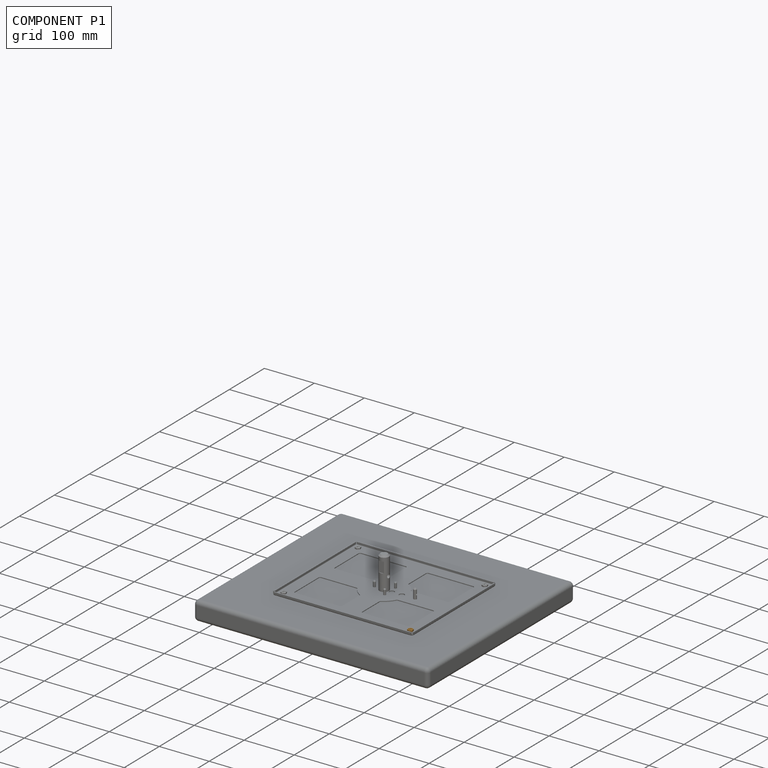
[diagram: component P1 — assembled]
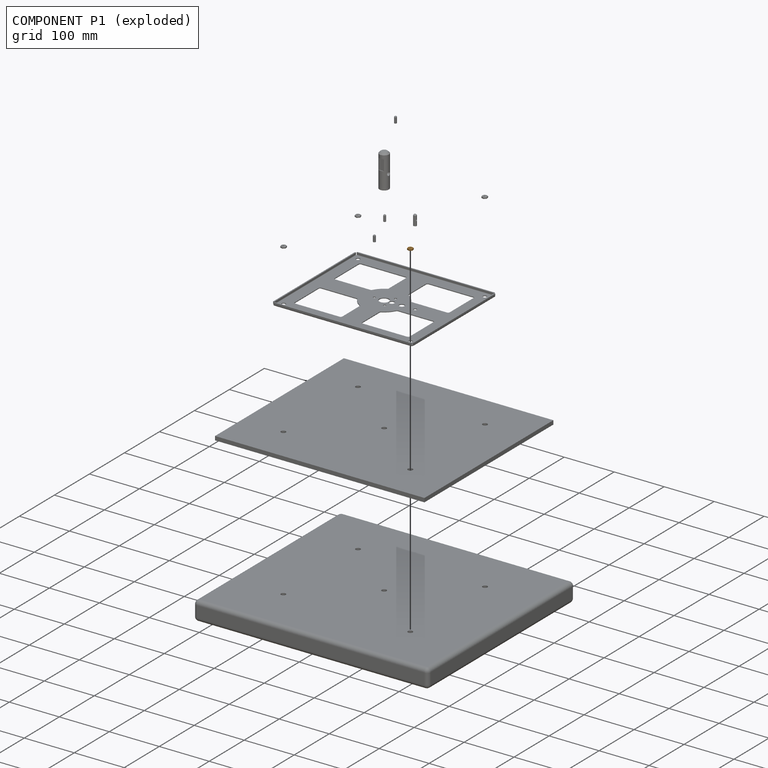
[diagram: component P1 — exploded]
COMPONENT P1 — geometry summary (no construction recipe available for this part):
  bounding box: 11.0 x 10.8 x 3.4 mm
  B-rep topology: 1 solid, 27 faces, 128 edges
  volume: 226 mm^3 (56% of its bounding box)
  symmetry: 2-fold rotationally symmetric about the z axis
Held by: FASTENED mate "Fastened 10" to P3.
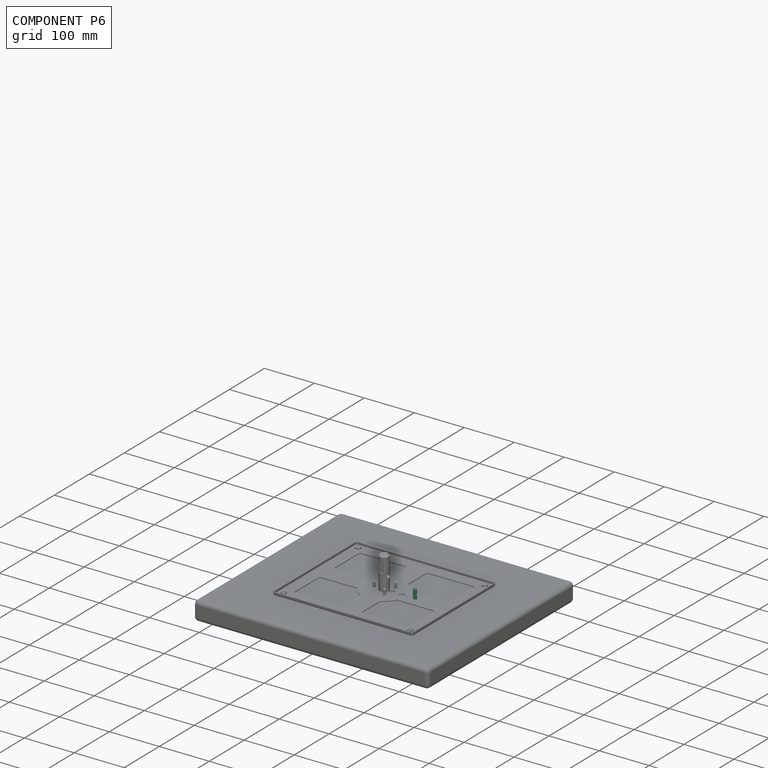
[diagram: component P6 — assembled]
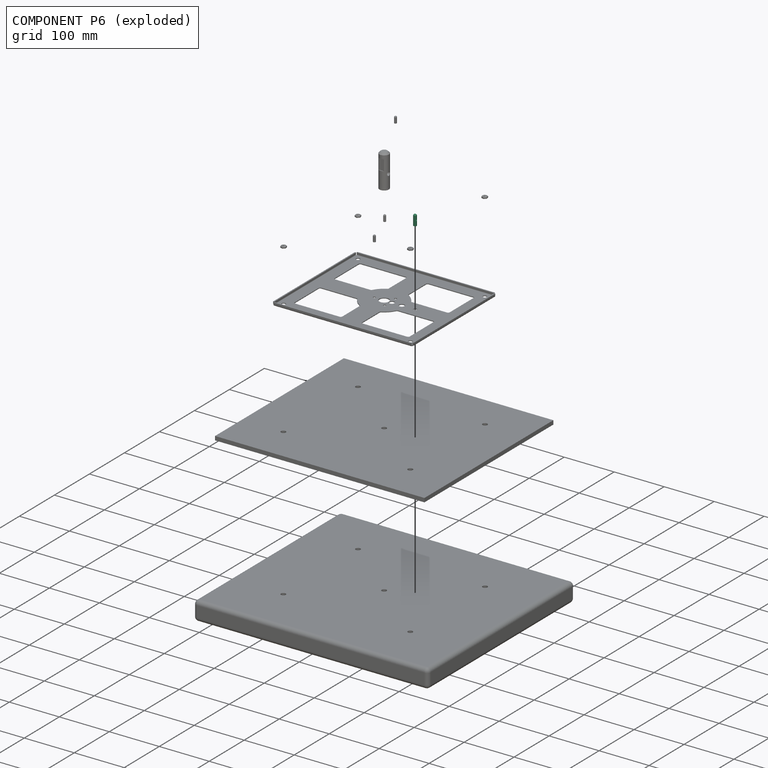
[diagram: component P6 — exploded]
COMPONENT P6 — recipe-attached (CADFS 00437336, mesh-verified: the recipe's output STEP matches this component's geometry to below the mesh-comparison resolution (tessellation chordal tolerance ~0.0338 mm)).
Held by: FASTENED mate "Fastened 5" to P3.
Construction recipe (FeatureScript — the CAD program that rebuilds this solid; sketch coordinates are in the units given by the * unit suffixes, e.g. mm):

FeatureScript 1511;
import(path : "onshape/std/geometry.fs", version : "1511.0");
import(path : "onshape/std/common.fs", version : "1511.0");
const mm = millimeter;
const VERTEX = EntityType.VERTEX;
const EDGE = EntityType.EDGE;
const FACE = EntityType.FACE;
const BODY = EntityType.BODY;
function v(x, y){return vector(x, y);}
function OD(order){return orderDisambiguation(order);}
function OSD(set){return originalSetDisambiguation(set);}
function TD(topology){return topologyDisambiguation(topology);}
function TDD(query){return trueDependencyDisambiguation(query);}
function sQuery(a, b, c) {return sketchEntityQuery(a, b, c);}

annotation { "Feature Type Name" : "Feature", "Feature Type Description" : "" }
export const myFeature = defineFeature(function(context is Context, id is Id, definition is map)
    precondition{}
    {
        {
            var Q0;
            Q0=qCreatedBy(makeId("Top.planeOp"),FACE);
            var sketch = newSketch(context, id + "F0", { "sketchPlane" : qUnion([Q0])});
            skCircle(sketch, "E0", {"center": v(0, 0) * mm, "radius": 3.18 * mm});
            skSolve(sketch);
        }
        {
            var Q0;
            Q0=makeQuery(id+"F0.imprint","IMPRINT",FACE,{"disambiguationData":[TD([[makeQuery(id+"F0.imprint","IMPRINT",EDGE,{"derivedFrom":sQuery(id+"F0.wireOp",EDGE,"E0")}),1.0]])]});
            extrude(context, id + "F1", {"entities" : qUnion([Q0]), "depth" : 20.64 * mm});
        }
        {
            var Q0;
            Q0=makeQuery(id+"F1.opExtrude","CAP_EDGE",EDGE,{"disambiguationData":[OSD([sQuery(id+"F0.wireOp",EDGE,"E0")])],"isStart":false});
            chamfer(context, id + "F2", {"entities" : qUnion([Q0]), "width" : 1.59 * mm, "tangentPropagation" : true});
        }
        {
            var Q0;
            Q0=qCreatedBy(makeId("Right.planeOp"),FACE);
            var sketch = newSketch(context, id + "F3", { "sketchPlane" : qUnion([Q0])});
            skCircle(sketch, "E1", {"center": v(0, 10.32) * mm, "radius": 1.59 * mm});
            skSolve(sketch);
        }
        {
            var Q0;
            Q0=qSketchRegion(id+"F3",true);
            extrude(context, id + "F4", {"entities" : qUnion([Q0]), "operationType" : NewBodyOperationType.REMOVE, "endBound" : BoundingType.SYMMETRIC, "depth" : 25.4 * mm});
        }
    });
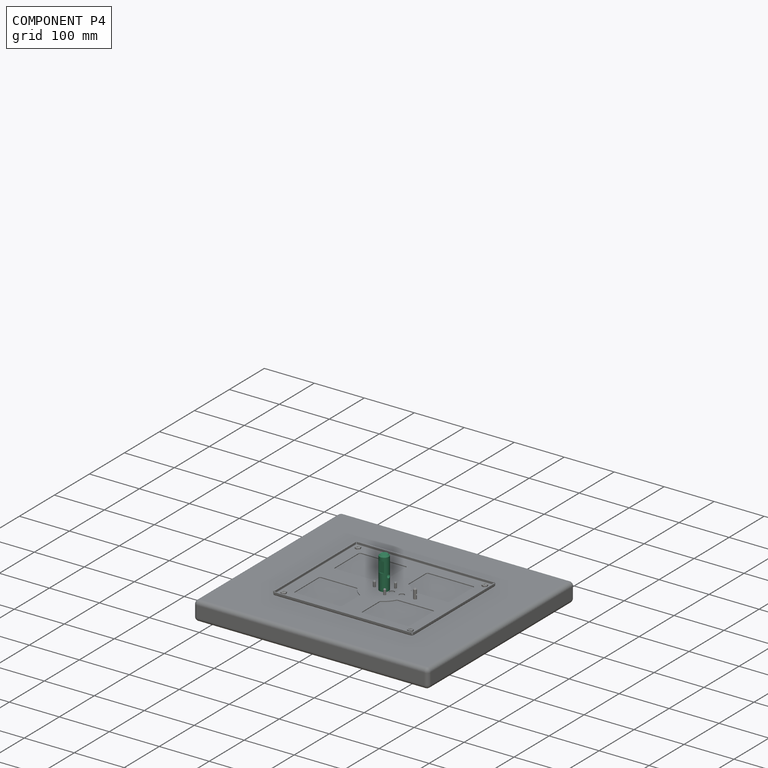
[diagram: component P4 — assembled]
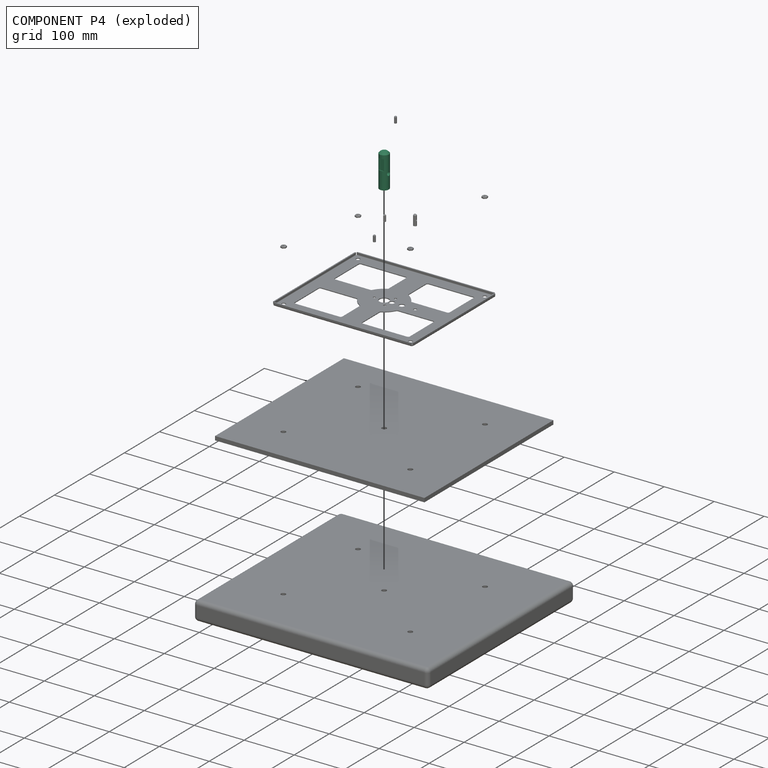
[diagram: component P4 — exploded]
COMPONENT P4 — recipe-attached (CADFS 00325563, mesh-verified: the recipe's output STEP matches this component's geometry to below the mesh-comparison resolution (tessellation chordal tolerance ~0.108 mm)).
Held by: FASTENED mate "Fastened 1" to P3; FASTENED mate "Fastened 11" to P11; FASTENED mate "Fastened 6" to P9.
Construction recipe (FeatureScript — the CAD program that rebuilds this solid; sketch coordinates are in the units given by the * unit suffixes, e.g. mm):

FeatureScript 1511;
import(path : "onshape/std/geometry.fs", version : "1511.0");
import(path : "onshape/std/common.fs", version : "1511.0");
const mm = millimeter;
const VERTEX = EntityType.VERTEX;
const EDGE = EntityType.EDGE;
const FACE = EntityType.FACE;
const BODY = EntityType.BODY;
function v(x, y){return vector(x, y);}
function OD(order){return orderDisambiguation(order);}
function OSD(set){return originalSetDisambiguation(set);}
function TD(topology){return topologyDisambiguation(topology);}
function TDD(query){return trueDependencyDisambiguation(query);}
function sQuery(a, b, c) {return sketchEntityQuery(a, b, c);}

annotation { "Feature Type Name" : "Feature", "Feature Type Description" : "" }
export const myFeature = defineFeature(function(context is Context, id is Id, definition is map)
    precondition{}
    {
        {
            var Q0;
            Q0=qCreatedBy(makeId("Top.planeOp"),FACE);
            var sketch = newSketch(context, id + "F0", { "sketchPlane" : qUnion([Q0])});
            skCircle(sketch, "E0", {"center": v(0, 0) * mm, "radius": 9.53 * mm});
            skSolve(sketch);
        }
        {
            var Q0;
            Q0=makeQuery(id+"F0.imprint","IMPRINT",FACE,{"disambiguationData":[TD([[makeQuery(id+"F0.imprint","IMPRINT",EDGE,{"derivedFrom":sQuery(id+"F0.wireOp",EDGE,"E0")}),1.0]])]});
            extrude(context, id + "F1", {"entities" : qUnion([Q0]), "depth" : 66.67 * mm});
        }
        {
            var Q0;
            Q0=makeQuery(id+"F1.opExtrude","CAP_EDGE",EDGE,{"disambiguationData":[OSD([sQuery(id+"F0.wireOp",EDGE,"E0")])],"isStart":true});
            chamfer(context, id + "F2", {"entities" : qUnion([Q0]), "width" : 3.17 * mm, "tangentPropagation" : true});
        }
        {
            var Q0;
            Q0=qCreatedBy(makeId("Right.planeOp"),FACE);
            var sketch = newSketch(context, id + "F3", { "sketchPlane" : qUnion([Q0])});
            skLineSegment(sketch, "E1", {"start": v(7.94, 10.32) * mm, "end": v(7.94, 31.75) * mm});
            skLineSegment(sketch, "E2", {"start": v(7.94, 31.75) * mm, "end": v(42.7, 31.75) * mm});
            skLineSegment(sketch, "E3", {"start": v(42.7, 31.75) * mm, "end": v(42.7, 10.32) * mm});
            skLineSegment(sketch, "E4", {"start": v(42.7, 10.32) * mm, "end": v(7.94, 10.32) * mm});
            skLineSegment(sketch, "E5", {"start": v(9.53, 38.16) * mm, "end": v(9.53, 0) * mm});
            skLineSegment(sketch, "E6", {"start": v(4.75, 38.16) * mm, "end": v(4.75, 0) * mm});
            skCircle(sketch, "E7", {"center": v(0, 38.1) * mm, "radius": 3.97 * mm});
            skSolve(sketch);
        }
        {
            var Q0;
            {var subQ0=sQuery(id+"F3.wireOp",EDGE,"E3");Q0=makeQuery(id+"F3.imprint","IMPRINT",FACE,{"disambiguationData":[TD([[makeQuery(id+"F3.imprint","IMPRINT",EDGE,{"derivedFrom":subQ0}),-1.0]])]});}
            var Q1;
            {var subQ0=sQuery(id+"F3.wireOp",EDGE,"E1");Q1=makeQuery(id+"F3.imprint","IMPRINT",FACE,{"disambiguationData":[TD([[makeQuery(id+"F3.imprint","IMPRINT",EDGE,{"derivedFrom":subQ0}),-1.0]])]});}
            var Q2;
            Q2=makeQuery(id+"F3.imprint","IMPRINT",FACE,{"disambiguationData":[TD([[makeQuery(id+"F3.imprint","IMPRINT",EDGE,{"derivedFrom":sQuery(id+"F3.wireOp",EDGE,"E7")}),1.0]])]});
            extrude(context, id + "F4", {"entities" : qUnion([Q0, Q1, Q2]), "operationType" : NewBodyOperationType.REMOVE, "endBound" : BoundingType.SYMMETRIC, "depth" : 81.68 * mm});
        }
    });
PROVENANCE & LICENSES
Assembly (occurrences, transforms, mates, per-part STEP geometry): AutoMate dataset, Zenodo record 7776208, CC0.
Construction recipes: CADFS (HuggingFace VladPyatov/CADFS, CC-BY-4.0, layered over the ABC dataset), FeatureScript reconstruction programs keyed by ABC model id.
Join: ABC meta listings map ABC model id -> Onshape documentId; within a shared document, parts are matched by geometric signature (bounding-box dims + volume at 0.1% relative tolerance, exact B-rep face/solid counts).
Verification: 3 of this assembly's 12 components carry a recipe attachment, and every attachment is mesh-verified: the CADFS STEP and the AutoMate member STEP were compared as meshes in their shared local frame (symmetric sampled-point-to-mesh distance); worst across the 3 attachments: below the mesh-comparison resolution (tessellation chordal tolerance ~0.554 mm) on a 369 mm part.
Renders: orthographic iso camera (az 35 / el 25); the floor grid conveys scale (grid pitch printed in each image; no ruler). In the exploded view each component is displaced by its stored offset vector: the offsets alone carry the explosion direction (mate normal/axis signs are not orientation cues and do not encode it), and separation distances are assigned per mate-chain, not proportionally to assembly-order depth.
